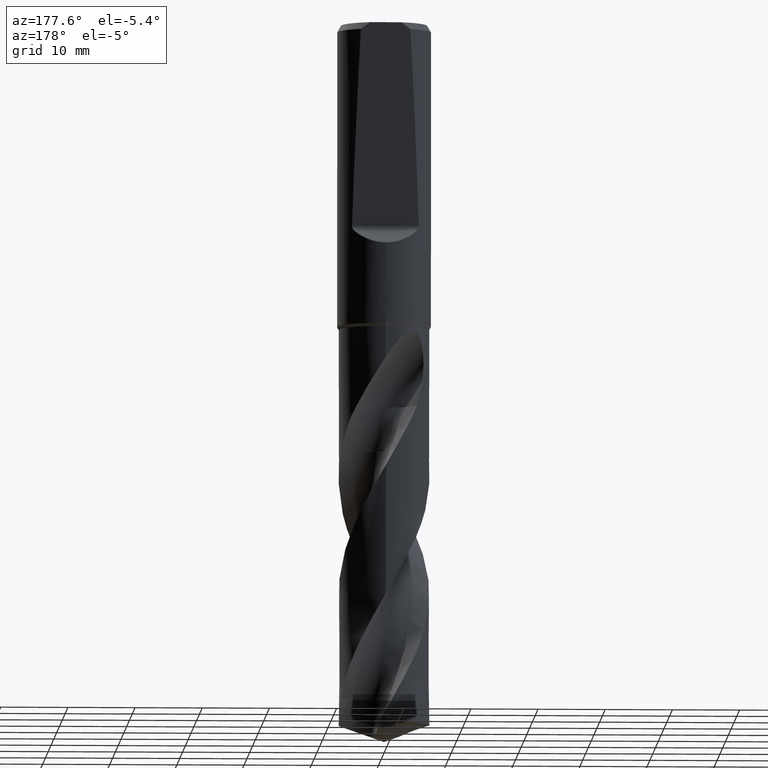
[diagram: clean part render]
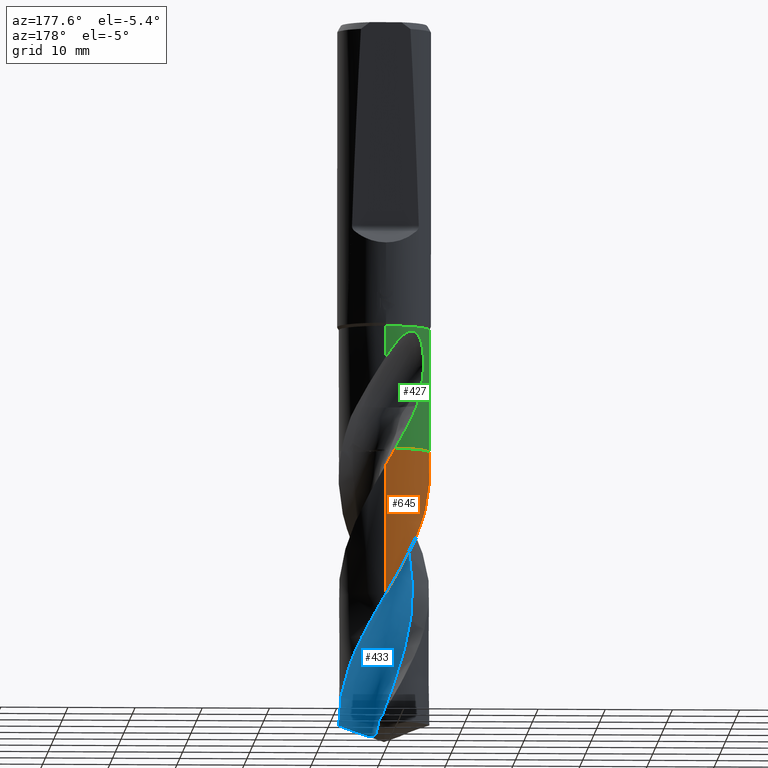
[diagram: same view with three faces highlighted in distinct colors, each labeled with its STEP entity id]
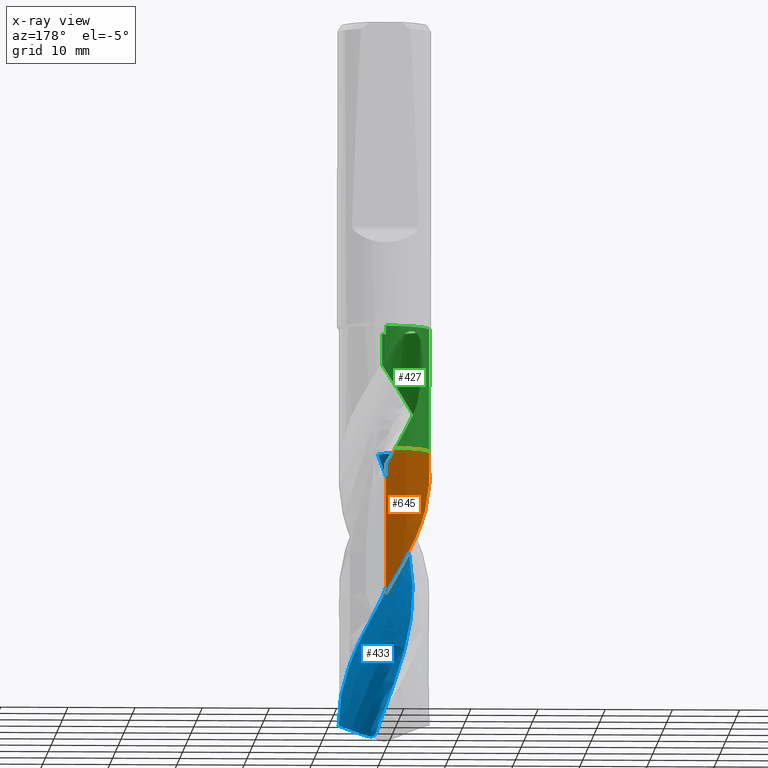
[diagram: x-ray of the same camera — body ghosted, the three highlighted faces saturated]
A machine part, auxiliary view with three faces highlighted in distinct colors.
The next image is the same camera in x-ray (body ghosted, the three faces saturated) — at least one of them is partly hidden behind the body in this view.
Their STEP definitions:

[orange] entity #645 — the highlighted conical surface has half-angle 0 deg.
#327=VERTEX_POINT('',#892);
#335=EDGE_CURVE('',#491,#327,#901,.T.);
#369=EDGE_CURVE('',#691,#607,#943,.T.);
#391=EDGE_CURVE('',#607,#767,#966,.T.);
#441=EDGE_CURVE('',#767,#491,#1020,.T.);
#489=EDGE_CURVE('',#737,#691,#1072,.T.);
#491=VERTEX_POINT('',#1074);
#607=VERTEX_POINT('',#1200);
#645=ADVANCED_FACE('',(#1245),#1246,.T.);
#691=VERTEX_POINT('',#1293);
#737=VERTEX_POINT('',#1340);
#743=EDGE_CURVE('',#327,#737,#1346,.T.);
#767=VERTEX_POINT('',#1371);
#892=CARTESIAN_POINT('',(-6.45462443042286,-1.97458184742703,-63.7));
#901=B_SPLINE_CURVE_WITH_KNOTS('',3,(#1562,#1563,#1564,#1565),.UNSPECIFIED.,.F.,.F.,(4,4),(0.0,0.014979102721226),.UNSPECIFIED.);
#943=B_SPLINE_CURVE_WITH_KNOTS('',3,(#2344,#2345,#2346,#2347,#2348,#2349,#2350,#2351,#2352,#2353,#2354,#2355,#2356,#2357,#2358,#2359,#2360,#2361,#2362,#2363,#2364,#2365,#2366,#2367,#2368,#2369,#2370,#2371,#2372,#2373,#2374,#2375,#2376,#2377,#2378,#2379,#2380,#2381,#2382,#2383,#2384,#2385),.UNSPECIFIED.,.F.,.F.,(4,2,2,2,2,2,2,2,2,2,2,2,2,2,2,2,2,2,2,2,4),(0.0,2.60841472704565,3.91148099596725,6.51470225996306,7.16184843677821,17.6293288972875,17.9528230000258,28.4182261599588,29.0104599763667,31.3081366334576,32.3180311075003,32.4358092214748,34.3097998329228,35.1323884437328,36.6736063928703,39.3711563525133,39.8769049773579,41.7756210665541,42.4878391993768,43.7340770801645,47.4774712904126),.UNSPECIFIED.);
#966=LINE('',#2478,#2479);
#1020=B_SPLINE_CURVE_WITH_KNOTS('',3,(#3111,#3112,#3113,#3114,#3115,#3116,#3117,#3118,#3119,#3120,#3121,#3122,#3123,#3124,#3125,#3126,#3127,#3128,#3129,#3130,#3131,#3132,#3133,#3134,#3135,#3136,#3137,#3138,#3139,#3140,#3141,#3142,#3143,#3144,#3145,#3146,#3147,#3148,#3149,#3150,#3151,#3152,#3153,#3154,#3155,#3156,#3157,#3158,#3159,#3160,#3161,#3162,#3163,#3164,#3165,#3166),.UNSPECIFIED.,.F.,.F.,(4,2,2,2,2,2,2,2,2,2,2,2,2,2,2,2,2,2,2,2,2,2,2,2,2,2,2,4),(0.0,3.6094763871331,5.22387985820616,7.83435737108984,8.17908281940914,11.5370636271643,11.6482843927255,15.1226201124927,15.2320564869372,18.7264188591826,18.8458782488066,22.3210940244424,22.5576284758712,25.6478339054742,26.2934632927179,29.0014147182,30.1421044619575,31.6740450851912,32.4830610158978,34.2651247848204,35.8947199546906,37.3187293752546,39.1809530221651,41.2096111264088,44.2632676352437,45.7872476930288,45.8822495885771,47.3087875527713),.UNSPECIFIED.);
#1072=B_SPLINE_CURVE_WITH_KNOTS('',3,(#4024,#4025,#4026,#4027),.UNSPECIFIED.,.F.,.F.,(4,4),(0.0,0.0119035290309058),.UNSPECIFIED.);
#1074=CARTESIAN_POINT('',(-6.45547001148219,-1.97181568766404,-63.705));
#1200=CARTESIAN_POINT('',(4.81195305200056E-016,6.74990605186965,-66.1717772725898));
#1245=FACE_OUTER_BOUND('',#5984,.T.);
#1246=CONICAL_SURFACE('',#5985,6.74995,2.44838792626987E-006);
#1293=CARTESIAN_POINT('',(-1.42025230153988,6.59879031150665,-63.7049999999999));
#1340=CARTESIAN_POINT('',(-1.42309010233231,6.59817888289215,-63.7));
#1346=CIRCLE('',#6966,6.7499);
#1371=CARTESIAN_POINT('',(-8.84468098854824E-015,6.74995320003243,-85.4285961350601));
#1562=CARTESIAN_POINT('',(-6.45681471524517,-1.96740798299401,-63.7129657938825));
#1563=CARTESIAN_POINT('',(-6.45608594589112,-1.96979968685216,-63.7086438685234));
#1564=CARTESIAN_POINT('',(-6.45535585082279,-1.9721909753735,-63.7043219376779));
#1565=CARTESIAN_POINT('',(-6.45462443042285,-1.97458184742702,-63.7));
#2344=CARTESIAN_POINT('',(-1.42141855211195,6.59853918735497,-63.702945202817));
#2345=CARTESIAN_POINT('',(-0.994650147882827,6.69047301341365,-64.4548745357312));
#2346=CARTESIAN_POINT('',(-0.560079438081121,6.74076359662548,-65.2063741148237));
#2347=CARTESIAN_POINT('',(0.0941131089398632,6.75276923244494,-66.3340627737686));
#2348=CARTESIAN_POINT('',(0.312125404488289,6.74621075111051,-66.7091297161742));
#2349=CARTESIAN_POINT('',(0.963681770441603,6.69494651006564,-67.8352002298889));
#2350=CARTESIAN_POINT('',(1.39358555718122,6.61883345924482,-68.5840294104989));
#2351=CARTESIAN_POINT('',(1.91745417063522,6.47274569248611,-69.5210127833221));
#2352=CARTESIAN_POINT('',(2.02102382020795,6.44115904600317,-69.7075092431834));
#2353=CARTESIAN_POINT('',(3.78581549287871,5.85618708626952,-72.9119558303667));
#2354=CARTESIAN_POINT('',(5.17036074467648,4.67945008818629,-75.8219679644251));
#2355=CARTESIAN_POINT('',(6.00695731236632,3.07913102987968,-78.9325826000195));
#2356=CARTESIAN_POINT('',(6.03145674313281,3.03086062341803,-79.0258162359958));
#2357=CARTESIAN_POINT('',(6.82908277446184,1.41134898378051,-82.136092638973));
#2358=CARTESIAN_POINT('',(6.96194876470371,-0.400900384492098,-85.0471974123016));
#2359=CARTESIAN_POINT('',(6.3949592313197,-2.16247104865236,-88.2349634523103));
#2360=CARTESIAN_POINT('',(6.36252195490035,-2.25612517272503,-88.4056357612421));
#2361=CARTESIAN_POINT('',(6.19424501781686,-2.7094519333505,-89.2388573166208));
#2362=CARTESIAN_POINT('',(6.02988987351155,-3.05782479903576,-89.900634680753));
#2363=CARTESIAN_POINT('',(5.7518775984146,-3.53645497198892,-90.8542848334215));
#2364=CARTESIAN_POINT('',(5.66152809523872,-3.679365057637,-91.1453133394114));
#2365=CARTESIAN_POINT('',(5.55475015084835,-3.83499768673354,-91.470430666899));
#2366=CARTESIAN_POINT('',(5.54352749314338,-3.85120247089997,-91.5043868350772));
#2367=CARTESIAN_POINT('',(5.35254783835293,-4.12440032131194,-92.0786553679614));
#2368=CARTESIAN_POINT('',(5.15518618956621,-4.36857851371054,-92.6187485112685));
#2369=CARTESIAN_POINT('',(4.84783318571444,-4.69889225481599,-93.3963235265989));
#2370=CARTESIAN_POINT('',(4.75100365243202,-4.79677567459534,-93.6334525862687));
#2371=CARTESIAN_POINT('',(4.46430803352099,-5.06938358066031,-94.3150112159417));
#2372=CARTESIAN_POINT('',(4.26738440512676,-5.23622894435803,-94.7588131848635));
#2373=CARTESIAN_POINT('',(3.70096418069052,-5.66292853734022,-95.9811703029327));
#2374=CARTESIAN_POINT('',(3.31407601787965,-5.89771262237363,-96.7572778432937));
#2375=CARTESIAN_POINT('',(2.83015729554042,-6.12859274422081,-97.6808979157817));
#2376=CARTESIAN_POINT('',(2.75308643361956,-6.163599277744,-97.8266959909592));
#2377=CARTESIAN_POINT('',(2.38366816820803,-6.32308355785767,-98.5200677197525));
#2378=CARTESIAN_POINT('',(2.08339756906026,-6.42827826925446,-99.0672144964052));
#2379=CARTESIAN_POINT('',(1.66182051678174,-6.54331000713022,-99.8201142101754));
#2380=CARTESIAN_POINT('',(1.54599977175299,-6.57163983576574,-100.025441873591));
#2381=CARTESIAN_POINT('',(1.22558971237946,-6.64107083421396,-100.590153855112));
#2382=CARTESIAN_POINT('',(1.01983121631653,-6.67576221137777,-100.949116918505));
#2383=CARTESIAN_POINT('',(0.191091338017212,-6.77629498081644,-102.388242568978));
#2384=CARTESIAN_POINT('',(-0.438521722501992,-6.76485796766971,-103.463849304956));
#2385=CARTESIAN_POINT('',(-1.05778435860678,-6.66660275182844,-104.543200918703));
#2478=CARTESIAN_POINT('',(-8.13971610916106E-016,6.74995,-84.1216004593516));
#2479=VECTOR('',#7819,1.0);
#3111=CARTESIAN_POINT('',(6.7321767860416,-0.490199675114795,-104.543200918703));
#3112=CARTESIAN_POINT('',(6.77591349311111,0.11049525068211,-103.50164256975));
#3113=CARTESIAN_POINT('',(6.73911770130022,0.715002915236262,-102.473749106396));
#3114=CARTESIAN_POINT('',(6.56988418353102,1.57223484183529,-100.96821701571));
#3115=CARTESIAN_POINT('',(6.5018031388104,1.83350948074738,-100.501550152455));
#3116=CARTESIAN_POINT('',(6.28310452342239,2.50506722806708,-99.2839514983828));
#3117=CARTESIAN_POINT('',(6.10812079838418,2.90570894844931,-98.5366634971829));
#3118=CARTESIAN_POINT('',(5.86787876275453,3.3367027330707,-97.6847896458287));
#3119=CARTESIAN_POINT('',(5.83922824932869,3.38659152376115,-97.585391908757));
#3120=CARTESIAN_POINT('',(5.52423292954409,3.91918186617651,-96.5173709538488));
#3121=CARTESIAN_POINT('',(5.17962956759883,4.36439620947536,-95.5594459029658));
#3122=CARTESIAN_POINT('',(4.77102854775449,4.77491375747542,-94.5588597826704));
#3123=CARTESIAN_POINT('',(4.75787952818876,4.78801599313903,-94.5267857143604));
#3124=CARTESIAN_POINT('',(4.33145609060338,5.20942337983243,-93.4912537961921));
#3125=CARTESIAN_POINT('',(3.86744801103435,5.56256362751694,-92.4998144857769));
#3126=CARTESIAN_POINT('',(3.34818112852759,5.86106520871688,-91.4651405065965));
#3127=CARTESIAN_POINT('',(3.33230281164425,5.87010724202007,-91.4335637645731));
#3128=CARTESIAN_POINT('',(2.80782626835266,6.1659598060431,-90.3932854899109));
#3129=CARTESIAN_POINT('',(2.26435875324721,6.38556501524205,-89.396728448785));
#3130=CARTESIAN_POINT('',(1.68010039305591,6.53755503343341,-88.3540013555675));
#3131=CARTESIAN_POINT('',(1.66078288236192,6.54248898200039,-88.3195512601972));
#3132=CARTESIAN_POINT('',(1.07840871131651,6.68848853659788,-87.2824918701664));
#3133=CARTESIAN_POINT('',(0.499719070218107,6.75639572803738,-86.2918118373357));
#3134=CARTESIAN_POINT('',(-0.119994859975656,6.74900158627416,-85.2213865484131));
#3135=CARTESIAN_POINT('',(-0.159467265974992,6.74818445350932,-85.1531642304548));
#3136=CARTESIAN_POINT('',(-0.715463451256615,6.73178333687393,-84.1926947118816));
#3137=CARTESIAN_POINT('',(-1.22848870514092,6.65730885445562,-83.3089756784958));
#3138=CARTESIAN_POINT('',(-1.83251279236958,6.49733180395913,-82.2309233599471));
#3139=CARTESIAN_POINT('',(-1.93612249115871,6.46721185657862,-82.0444317590972));
#3140=CARTESIAN_POINT('',(-2.47041941417817,6.29790271458178,-81.0770118574195));
#3141=CARTESIAN_POINT('',(-2.88714949576889,6.11810739766888,-80.3015563601045));
#3142=CARTESIAN_POINT('',(-3.4496392225281,5.8050027646261,-79.1919413665607));
#3143=CARTESIAN_POINT('',(-3.61220949178008,5.70525690137154,-78.8624438682781));
#3144=CARTESIAN_POINT('',(-3.98279462495799,5.45569037542713,-78.0919891326313));
#3145=CARTESIAN_POINT('',(-4.1870523441124,5.30056470022123,-77.6514612578749));
#3146=CARTESIAN_POINT('',(-4.4851547097143,5.04611949952581,-76.9770033442195));
#3147=CARTESIAN_POINT('',(-4.5854561577251,4.95514711579056,-76.7440360849311));
#3148=CARTESIAN_POINT('',(-4.89757212725057,4.65448020955557,-75.9972696104557));
#3149=CARTESIAN_POINT('',(-5.09827224659672,4.43374311055498,-75.4824174310888));
#3150=CARTESIAN_POINT('',(-5.45350992262946,3.98686475046877,-74.499122739739));
#3151=CARTESIAN_POINT('',(-5.61009557401478,3.76333221452888,-74.0306783407445));
#3152=CARTESIAN_POINT('',(-5.87737343140555,3.3278698614603,-73.1506176379335));
#3153=CARTESIAN_POINT('',(-5.99107242556649,3.11851012231822,-72.7393391031787));
#3154=CARTESIAN_POINT('',(-6.22726610327534,2.62285701809091,-71.7924697992895));
#3155=CARTESIAN_POINT('',(-6.341610653239,2.33290058795401,-71.257870945381));
#3156=CARTESIAN_POINT('',(-6.53793030439818,1.71230955994266,-70.1373822729686));
#3157=CARTESIAN_POINT('',(-6.6156596839304,1.38175609825343,-69.5517207431259));
#3158=CARTESIAN_POINT('',(-6.74734929409467,0.542975089850556,-68.0880824963201));
#3159=CARTESIAN_POINT('',(-6.76908087030662,0.0314863644238788,-67.2142810618958));
#3160=CARTESIAN_POINT('',(-6.71500630262277,-0.731242625089391,-65.8963854090281));
#3161=CARTESIAN_POINT('',(-6.68267355281265,-0.983658497911254,-65.4588907852372));
#3162=CARTESIAN_POINT('',(-6.63337336399645,-1.2489200128668,-64.9924430693767));
#3163=CARTESIAN_POINT('',(-6.6304257176614,-1.26447517310635,-64.9650659439186));
#3164=CARTESIAN_POINT('',(-6.58232213416116,-1.51352918345738,-64.5264943629225));
#3165=CARTESIAN_POINT('',(-6.5249100280342,-1.74450236846844,-64.1158580000826));
#3166=CARTESIAN_POINT('',(-6.45541940774096,-1.9719813476624,-63.7047005786555));
#4024=CARTESIAN_POINT('',(-1.42309010233229,6.59817888289213,-63.7));
#4025=CARTESIAN_POINT('',(-1.42114264074437,6.59859891849117,-63.7034314343376));
#4026=CARTESIAN_POINT('',(-1.41919500317624,6.59901808974279,-63.706862874448));
#4027=CARTESIAN_POINT('',(-1.41724719016299,6.59943639655923,-63.7102943206111));
#5984=EDGE_LOOP('',(#8088,#8089,#8090,#8091,#8092,#8093));
#5985=AXIS2_PLACEMENT_3D('',#8094,#8095,#8096);
#6966=AXIS2_PLACEMENT_3D('',#8138,#8139,#8140);
#7819=DIRECTION('',(-2.99831141112908E-022,2.44838792626742E-006,-0.999999999997003));
#8088=ORIENTED_EDGE('',*,*,#391,.T.);
#8089=ORIENTED_EDGE('',*,*,#441,.T.);
#8090=ORIENTED_EDGE('',*,*,#335,.T.);
#8091=ORIENTED_EDGE('',*,*,#743,.T.);
#8092=ORIENTED_EDGE('',*,*,#489,.T.);
#8093=ORIENTED_EDGE('',*,*,#369,.T.);
#8094=CARTESIAN_POINT('',(0.0,0.0,-84.1216004593516));
#8095=DIRECTION('',(0.0,-0.0,-1.0));
#8096=DIRECTION('',(0.0,1.0,0.0));
#8138=CARTESIAN_POINT('',(0.0,0.0,-63.7));
#8139=DIRECTION('',(0.0,0.0,-1.0));
#8140=DIRECTION('',(0.0,1.0,0.0));

[blue] entity #433 — the highlighted face is a freeform B-spline surface patch.
#433=ADVANCED_FACE('',(#1011),#1012,.F.);
#437=EDGE_CURVE('',#723,#439,#1016,.T.);
#439=VERTEX_POINT('',#1018);
#441=EDGE_CURVE('',#767,#491,#1020,.T.);
#483=VERTEX_POINT('',#1066);
#491=VERTEX_POINT('',#1074);
#497=EDGE_CURVE('',#439,#483,#1080,.T.);
#533=EDGE_CURVE('',#491,#723,#1119,.T.);
#683=EDGE_CURVE('',#483,#767,#1285,.T.);
#723=VERTEX_POINT('',#1326);
#767=VERTEX_POINT('',#1371);
#1011=FACE_OUTER_BOUND('',#2598,.T.);
#1012=B_SPLINE_SURFACE_WITH_KNOTS('',3,3,((#2599,#2600,#2601,#2602,#2603,#2604,#2605,#2606,#2607,#2608,#2609,#2610,#2611,#2612,#2613,#2614,#2615,#2616,#2617,#2618,#2619,#2620,#2621,#2622,#2623,#2624,#2625,#2626,#2627,#2628,#2629,#2630,#2631,#2632,#2633,#2634,#2635,#2636,#2637,#2638,#2639,#2640),(#2641,#2642,#2643,#2644,#2645,#2646,#2647,#2648,#2649,#2650,#2651,#2652,#2653,#2654,#2655,#2656,#2657,#2658,#2659,#2660,#2661,#2662,#2663,#2664,#2665,#2666,#2667,#2668,#2669,#2670,#2671,#2672,#2673,#2674,#2675,#2676,#2677,#2678,#2679,#2680,#2681,#2682),(#2683,#2684,#2685,#2686,#2687,#2688,#2689,#2690,#2691,#2692,#2693,#2694,#2695,#2696,#2697,#2698,#2699,#2700,#2701,#2702,#2703,#2704,#2705,#2706,#2707,#2708,#2709,#2710,#2711,#2712,#2713,#2714,#2715,#2716,#2717,#2718,#2719,#2720,#2721,#2722,#2723,#2724),(#2725,#2726,#2727,#2728,#2729,#2730,#2731,#2732,#2733,#2734,#2735,#2736,#2737,#2738,#2739,#2740,#2741,#2742,#2743,#2744,#2745,#2746,#2747,#2748,#2749,#2750,#2751,#2752,#2753,#2754,#2755,#2756,#2757,#2758,#2759,#2760,#2761,#2762,#2763,#2764,#2765,#2766),(#2767,#2768,#2769,#2770,#2771,#2772,#2773,#2774,#2775,#2776,#2777,#2778,#2779,#2780,#2781,#2782,#2783,#2784,#2785,#2786,#2787,#2788,#2789,#2790,#2791,#2792,#2793,#2794,#2795,#2796,#2797,#2798,#2799,#2800,#2801,#2802,#2803,#2804,#2805,#2806,#2807,#2808),(#2809,#2810,#2811,#2812,#2813,#2814,#2815,#2816,#2817,#2818,#2819,#2820,#2821,#2822,#2823,#2824,#2825,#2826,#2827,#2828,#2829,#2830,#2831,#2832,#2833,#2834,#2835,#2836,#2837,#2838,#2839,#2840,#2841,#2842,#2843,#2844,#2845,#2846,#2847,#2848,#2849,#2850),(#2851,#2852,#2853,#2854,#2855,#2856,#2857,#2858,#2859,#2860,#2861,#2862,#2863,#2864,#2865,#2866,#2867,#2868,#2869,#2870,#2871,#2872,#2873,#2874,#2875,#2876,#2877,#2878,#2879,#2880,#2881,#2882,#2883,#2884,#2885,#2886,#2887,#2888,#2889,#2890,#2891,#2892),(#2893,#2894,#2895,#2896,#2897,#2898,#2899,#2900,#2901,#2902,#2903,#2904,#2905,#2906,#2907,#2908,#2909,#2910,#2911,#2912,#2913,#2914,#2915,#2916,#2917,#2918,#2919,#2920,#2921,#2922,#2923,#2924,#2925,#2926,#2927,#2928,#2929,#2930,#2931,#2932,#2933,#2934),(#2935,#2936,#2937,#2938,#2939,#2940,#2941,#2942,#2943,#2944,#2945,#2946,#2947,#2948,#2949,#2950,#2951,#2952,#2953,#2954,#2955,#2956,#2957,#2958,#2959,#2960,#2961,#2962,#2963,#2964,#2965,#2966,#2967,#2968,#2969,#2970,#2971,#2972,#2973,#2974,#2975,#2976),(#2977,#2978,#2979,#2980,#2981,#2982,#2983,#2984,#2985,#2986,#2987,#2988,#2989,#2990,#2991,#2992,#2993,#2994,#2995,#2996,#2997,#2998,#2999,#3000,#3001,#3002,#3003,#3004,#3005,#3006,#3007,#3008,#3009,#3010,#3011,#3012,#3013,#3014,#3015,#3016,#3017,#3018),(#3019,#3020,#3021,#3022,#3023,#3024,#3025,#3026,#3027,#3028,#3029,#3030,#3031,#3032,#3033,#3034,#3035,#3036,#3037,#3038,#3039,#3040,#3041,#3042,#3043,#3044,#3045,#3046,#3047,#3048,#3049,#3050,#3051,#3052,#3053,#3054,#3055,#3056,#3057,#3058,#3059,#3060)),.UNSPECIFIED.,.F.,.F.,.F.,(4,1,1,1,1,1,1,1,4),(4,1,2,2,2,2,2,2,2,2,2,2,2,2,2,2,2,2,2,1,2,4),(9.82247012635848E-017,0.392700748367105,0.785401496734209,1.17810224510131,1.57080299346842,1.96350374183552,2.35620449020263,2.74890523856973,3.14160598693684),(0.0,1.5027852835685,3.005570567137,4.00742742284934,6.01114113427401,8.01485484569868,10.0185685571233,12.022282268548,16.0297096913974,20.0371371142467,24.044564537096,28.0519919599454,32.0594193827947,36.066846805644,40.0742742284934,44.0817016513427,48.0891290741921,52.0965564970414,56.1039839198907,60.1114113427401,62.1151250541648,64.1188387655894),.UNSPECIFIED.);
#1016=B_SPLINE_CURVE_WITH_KNOTS('',3,(#3065,#3066,#3067,#3068,#3069,#3070,#3071,#3072,#3073,#3074,#3075,#3076,#3077,#3078,#3079,#3080,#3081,#3082,#3083,#3084,#3085,#3086,#3087,#3088,#3089,#3090,#3091,#3092,#3093,#3094,#3095,#3096,#3097,#3098,#3099,#3100,#3101,#3102,#3103,#3104,#3105,#3106),.UNSPECIFIED.,.F.,.F.,(4,1,2,2,2,2,2,2,2,2,2,2,2,2,2,2,2,2,2,1,2,4),(0.0,1.5027852835685,3.005570567137,4.00742742284934,6.01114113427401,8.01485484569868,10.0185685571233,12.022282268548,16.0297096913974,20.0371371142467,24.044564537096,28.0519919599454,32.0594193827947,36.066846805644,40.0742742284934,44.0817016513427,48.0891290741921,52.0965564970414,56.1039839198907,60.1114113427401,62.1151250541648,64.1188387655894),.UNSPECIFIED.);
#1018=CARTESIAN_POINT('',(1.16355140626848,4.09480875500876,-105.45061028102));
#1020=B_SPLINE_CURVE_WITH_KNOTS('',3,(#3111,#3112,#3113,#3114,#3115,#3116,#3117,#3118,#3119,#3120,#3121,#3122,#3123,#3124,#3125,#3126,#3127,#3128,#3129,#3130,#3131,#3132,#3133,#3134,#3135,#3136,#3137,#3138,#3139,#3140,#3141,#3142,#3143,#3144,#3145,#3146,#3147,#3148,#3149,#3150,#3151,#3152,#3153,#3154,#3155,#3156,#3157,#3158,#3159,#3160,#3161,#3162,#3163,#3164,#3165,#3166),.UNSPECIFIED.,.F.,.F.,(4,2,2,2,2,2,2,2,2,2,2,2,2,2,2,2,2,2,2,2,2,2,2,2,2,2,2,4),(0.0,3.6094763871331,5.22387985820616,7.83435737108984,8.17908281940914,11.5370636271643,11.6482843927255,15.1226201124927,15.2320564869372,18.7264188591826,18.8458782488066,22.3210940244424,22.5576284758712,25.6478339054742,26.2934632927179,29.0014147182,30.1421044619575,31.6740450851912,32.4830610158978,34.2651247848204,35.8947199546906,37.3187293752546,39.1809530221651,41.2096111264088,44.2632676352437,45.7872476930288,45.8822495885771,47.3087875527713),.UNSPECIFIED.);
#1066=CARTESIAN_POINT('',(6.73217678604159,-0.490199675114818,-104.543200918703));
#1074=CARTESIAN_POINT('',(-6.45547001148219,-1.97181568766404,-63.705));
#1080=B_SPLINE_CURVE_WITH_KNOTS('',3,(#4050,#4051,#4052,#4053,#4054,#4055,#4056,#4057,#4058,#4059,#4060,#4061,#4062,#4063,#4064,#4065,#4066,#4067,#4068,#4069),.UNSPECIFIED.,.F.,.F.,(4,2,2,2,2,2,2,2,2,4),(0.0,2.68807638243007,4.7918048135558,7.03815035793403,9.6794440435218,12.569325507475,15.8028415375982,19.4146266992796,21.7514746894956,24.0889062904465),.UNSPECIFIED.);
#1119=B_SPLINE_CURVE_WITH_KNOTS('',3,(#4913,#4914,#4915,#4916,#4917,#4918,#4919,#4920,#4921,#4922,#4923,#4924,#4925,#4926,#4927,#4928,#4929,#4930,#4931,#4932),.UNSPECIFIED.,.F.,.F.,(4,2,2,2,2,2,2,2,2,4),(-14.1757189674355,-13.2380813437881,-12.3002661310607,-10.5415472471319,-8.78302977049739,-7.0254399345643,-5.26896085826281,-3.51311918382967,-1.75705188792895,-0.0),.UNSPECIFIED.);
#1285=B_SPLINE_CURVE_WITH_KNOTS('',3,(#6273,#6274,#6275,#6276,#6277,#6278,#6279,#6280,#6281,#6282,#6283,#6284,#6285,#6286,#6287,#6288,#6289,#6290,#6291,#6292,#6293,#6294,#6295,#6296,#6297,#6298,#6299,#6300,#6301,#6302,#6303,#6304,#6305,#6306,#6307,#6308,#6309,#6310,#6311,#6312,#6313,#6314,#6315,#6316,#6317,#6318,#6319,#6320,#6321,#6322,#6323,#6324,#6325,#6326,#6327,#6328),.UNSPECIFIED.,.F.,.F.,(4,2,2,2,2,2,2,2,2,2,2,2,2,2,2,2,2,2,2,2,2,2,2,2,2,2,2,4),(0.0,3.6094763871331,5.22387985820616,7.83435737108984,8.17908281940914,11.5370636271643,11.6482843927255,15.1226201124927,15.2320564869372,18.7264188591826,18.8458782488066,22.3210940244424,22.5576284758712,25.6478339054742,26.2934632927179,29.0014147182,30.1421044619575,31.6740450851912,32.4830610158978,34.2651247848204,35.8947199546906,37.3187293752546,39.1809530221651,41.2096111264088,44.2632676352437,45.7872476930288,45.8822495885771,47.3087875527713),.UNSPECIFIED.);
#1326=CARTESIAN_POINT('',(0.715183852688511,-4.18412253876505,-63.705));
#1371=CARTESIAN_POINT('',(-8.84468098854824E-015,6.74995320003243,-85.4285961350601));
#2598=EDGE_LOOP('',(#7874,#7875,#7876,#7877,#7878));
#2599=CARTESIAN_POINT('',(-3.18198051526876,-9.70698051526875,-57.211));
#2600=CARTESIAN_POINT('',(-3.49762880248657,-9.6892339450352,-57.5995444756231));
#2601=CARTESIAN_POINT('',(-4.13685295321303,-9.58534460420507,-58.3819179945856));
#2602=CARTESIAN_POINT('',(-4.769201879957,-9.29897149157865,-59.1649348006116));
#2603=CARTESIAN_POINT('',(-5.27419593842555,-8.97416530715522,-59.8100503771975));
#2604=CARTESIAN_POINT('',(-5.471202084019,-8.840920245005,-60.0678474108114));
#2605=CARTESIAN_POINT('',(-6.04951822306637,-8.43397049283102,-60.8421736801692));
#2606=CARTESIAN_POINT('',(-6.41781244943569,-8.14927588713909,-61.3591159795685));
#2607=CARTESIAN_POINT('',(-7.1237312853322,-7.56150190459187,-62.4002499861934));
#2608=CARTESIAN_POINT('',(-7.45637268966448,-7.2409884423418,-62.9203756380846));
#2609=CARTESIAN_POINT('',(-8.07082775129849,-6.54831980559104,-63.9577693479461));
#2610=CARTESIAN_POINT('',(-8.35485653403761,-6.18141783489463,-64.4762316168021));
#2611=CARTESIAN_POINT('',(-8.8702540774829,-5.41077704319602,-65.5125095852414));
#2612=CARTESIAN_POINT('',(-9.10290793610902,-5.00916673812566,-66.0309976821697));
#2613=CARTESIAN_POINT('',(-9.71712016628376,-3.7630390217538,-67.5878993370277));
#2614=CARTESIAN_POINT('',(-10.0179569789194,-2.88042624554586,-68.6256335329529));
#2615=CARTESIAN_POINT('',(-10.3662020069567,-1.06021653023426,-70.7000780838631));
#2616=CARTESIAN_POINT('',(-10.4225501141987,-0.129145015059285,-71.7374119229942));
#2617=CARTESIAN_POINT('',(-10.2776915003155,1.71835740618701,-73.812416307943));
#2618=CARTESIAN_POINT('',(-10.0858740506611,2.63112213882924,-74.8498778206637));
#2619=CARTESIAN_POINT('',(-9.45755367462432,4.37450258321749,-76.9246967355395));
#2620=CARTESIAN_POINT('',(-9.03125825313551,5.20408249675878,-77.9621114938507));
#2621=CARTESIAN_POINT('',(-7.96452854593375,6.71937383058544,-80.0369806066799));
#2622=CARTESIAN_POINT('',(-7.3340807931845,7.40675209523193,-81.0744205694255));
#2623=CARTESIAN_POINT('',(-5.90451734479258,8.58599910915326,-83.1492750505459));
#2624=CARTESIAN_POINT('',(-5.11473516102228,9.0821853605941,-84.1866997889712));
#2625=CARTESIAN_POINT('',(-3.4243193541811,9.84154431202464,-86.2615634576688));
#2626=CARTESIAN_POINT('',(-2.53148234167934,10.1112932552349,-87.2989906278269));
#2627=CARTESIAN_POINT('',(-0.700492502042685,10.3967895285524,-89.3738488151862));
#2628=CARTESIAN_POINT('',(0.231913413817933,10.4208931164264,-90.4112852070372));
#2629=CARTESIAN_POINT('',(2.07328686686427,10.211946184496,-92.4861337459123));
#2630=CARTESIAN_POINT('',(2.9788712741555,9.98862125180316,-93.5235599365649));
#2631=CARTESIAN_POINT('',(4.699447011012,9.30037015178935,-95.5984490282313));
#2632=CARTESIAN_POINT('',(5.51374638195395,8.84561499940403,-96.6358623171632));
#2633=CARTESIAN_POINT('',(6.99127559529852,7.72714507347948,-98.7106809173959));
#2634=CARTESIAN_POINT('',(7.65650627832451,7.07318305577437,-99.74821636351));
#2635=CARTESIAN_POINT('',(8.78489799873365,5.60289874721488,-101.82317968493));
#2636=CARTESIAN_POINT('',(9.48753569641785,4.39387752887985,-103.378614894298));
#2637=CARTESIAN_POINT('',(9.92703311808111,3.0722388358664,-104.933986043238));
#2638=CARTESIAN_POINT('',(10.1553083622899,2.17288266418363,-105.97102341391));
#2639=CARTESIAN_POINT('',(10.24482512089,1.72051562015456,-106.488907292739));
#2640=CARTESIAN_POINT('',(10.3121604422015,1.26768718860873,-107.007477781372));
#2641=CARTESIAN_POINT('',(-3.59848450863848,-9.29044042332765,-57.211));
#2642=CARTESIAN_POINT('',(-3.91415942287795,-9.27272048011575,-57.5995451701271));
#2643=CARTESIAN_POINT('',(-4.54462542398429,-9.15975318988982,-58.3824548068669));
#2644=CARTESIAN_POINT('',(-5.14829045367206,-8.84741082633067,-59.1661479742131));
#2645=CARTESIAN_POINT('',(-5.61998752445256,-8.49699543019721,-59.8108137830136));
#2646=CARTESIAN_POINT('',(-5.80402570536207,-8.3546783405938,-60.0683924513693));
#2647=CARTESIAN_POINT('',(-6.34485315277672,-7.92343607865965,-60.8421957140724));
#2648=CARTESIAN_POINT('',(-6.68947139233492,-7.62603633149149,-61.3588928534762));
#2649=CARTESIAN_POINT('',(-7.35112824428613,-7.01756382706157,-62.4005425499547));
#2650=CARTESIAN_POINT('',(-7.66013578466845,-6.68767259974313,-62.9208639622024));
#2651=CARTESIAN_POINT('',(-8.22428472257295,-5.97899689092072,-63.95825245382));
#2652=CARTESIAN_POINT('',(-8.48264275355567,-5.60578181112978,-64.4766797161285));
#2653=CARTESIAN_POINT('',(-8.94573221571751,-4.82597868379945,-65.5127976894806));
#2654=CARTESIAN_POINT('',(-9.15219982728726,-4.42159285894364,-66.0312542665905));
#2655=CARTESIAN_POINT('',(-9.68758358685572,-3.17238307063933,-67.5882611249742));
#2656=CARTESIAN_POINT('',(-9.93631575717539,-2.29466591931305,-68.6260377230421));
#2657=CARTESIAN_POINT('',(-10.1814863652492,-0.49838008209875,-70.7004245626589));
#2658=CARTESIAN_POINT('',(-10.1888476507811,0.414138660876714,-71.7377451327105));
#2659=CARTESIAN_POINT('',(-9.95101999485768,2.21136782090608,-73.8127697072937));
#2660=CARTESIAN_POINT('',(-9.71685556123873,3.09329173752998,-74.8502356483555));
#2661=CARTESIAN_POINT('',(-9.01214692699013,4.76358848540972,-76.9250489722556));
#2662=CARTESIAN_POINT('',(-8.55317420112361,5.5522340480904,-77.9624616727115));
#2663=CARTESIAN_POINT('',(-7.4321112680659,6.97687190457469,-80.0373321522236));
#2664=CARTESIAN_POINT('',(-6.78096589522778,7.61613119210176,-81.0747734846115));
#2665=CARTESIAN_POINT('',(-5.32296106039295,8.69355172289131,-83.1496274687563));
#2666=CARTESIAN_POINT('',(-4.52594355008195,9.13785542293146,-84.1870514568585));
#2667=CARTESIAN_POINT('',(-2.83502241222265,9.79151027005065,-86.2619157467755));
#2668=CARTESIAN_POINT('',(-1.94892346919123,10.0093166368682,-87.2993425604051));
#2669=CARTESIAN_POINT('',(-0.14538837962617,10.1927476613317,-89.3742006235205));
#2670=CARTESIAN_POINT('',(0.766787161371482,10.1685324103115,-90.4116377250061));
#2671=CARTESIAN_POINT('',(2.55467996576088,9.86838231494692,-92.4864852699301));
#2672=CARTESIAN_POINT('',(3.42797475748158,9.60380878458415,-93.5239112746543));
#2673=CARTESIAN_POINT('',(5.07287576886629,8.84175798597418,-95.5988043421256));
#2674=CARTESIAN_POINT('',(5.84513448879827,8.35576307122503,-96.6362152006481));
#2675=CARTESIAN_POINT('',(7.23019818958414,7.18613807850615,-98.7110233643929));
#2676=CARTESIAN_POINT('',(7.84661114508147,6.51314426845413,-99.7485688264427));
#2677=CARTESIAN_POINT('',(8.87210984162683,5.01793980099298,-101.82355625118));
#2678=CARTESIAN_POINT('',(9.49674834070932,3.80082391789212,-103.378914186025));
#2679=CARTESIAN_POINT('',(9.85709842058979,2.48673891531968,-104.934334935301));
#2680=CARTESIAN_POINT('',(10.0324386487761,1.59616452795624,-105.971413679192));
#2681=CARTESIAN_POINT('',(10.0972332326483,1.14974376280359,-106.489225617402));
#2682=CARTESIAN_POINT('',(10.1414623715856,0.703911280293982,-107.007822135133));
#2683=CARTESIAN_POINT('',(-4.26567439273161,-8.29190737352337,-57.211));
#2684=CARTESIAN_POINT('',(-4.58141313571002,-8.2742300742417,-57.5995463073199));
#2685=CARTESIAN_POINT('',(-5.19075656552089,-8.14659355332486,-58.3833376843218));
#2686=CARTESIAN_POINT('',(-5.72673933492476,-7.79372940983577,-59.168143268162));
#2687=CARTESIAN_POINT('',(-6.12167229372349,-7.40534777140245,-59.8120693284854));
#2688=CARTESIAN_POINT('',(-6.2761723295128,-7.25004749824259,-60.06928887624));
#2689=CARTESIAN_POINT('',(-6.73237780607765,-6.78513849303649,-60.842231934069));
#2690=CARTESIAN_POINT('',(-7.02460171902078,-6.47174882953765,-61.3585258829054));
#2691=CARTESIAN_POINT('',(-7.58952223570208,-5.83948938980974,-62.4010237230458));
#2692=CARTESIAN_POINT('',(-7.84754285574393,-5.50024474071848,-62.921667096303));
#2693=CARTESIAN_POINT('',(-8.30473524660367,-4.77956653712976,-63.9590470080628));
#2694=CARTESIAN_POINT('',(-8.50925219638031,-4.40393620750796,-64.4774166783685));
#2695=CARTESIAN_POINT('',(-8.86410382239892,-3.62661338020055,-65.5132715441395));
#2696=CARTESIAN_POINT('',(-9.01710634201307,-3.22709097110358,-66.0316762722828));
#2697=CARTESIAN_POINT('',(-9.39364070012309,-2.00306550470024,-67.5888561346848));
#2698=CARTESIAN_POINT('',(-9.54013232041018,-1.15585762586183,-68.6267023529278));
#2699=CARTESIAN_POINT('',(-9.58871119315948,0.551601636685936,-70.7009945404343));
#2700=CARTESIAN_POINT('',(-9.50549726405055,1.40754236031612,-71.738293171188));
#2701=CARTESIAN_POINT('',(-9.10176236087946,3.06727581817783,-73.8133509187979));
#2702=CARTESIAN_POINT('',(-8.79518602268179,3.87069123390076,-74.8508241537196));
#2703=CARTESIAN_POINT('',(-7.96679591950118,5.364474583384,-76.9256282933327));
#2704=CARTESIAN_POINT('',(-7.45876037819333,6.05827407408985,-77.9630375779908));
#2705=CARTESIAN_POINT('',(-6.26510334947567,7.28003688778736,-80.0379103567663));
#2706=CARTESIAN_POINT('',(-5.59170664138886,7.81484781123356,-81.0753541831434));
#2707=CARTESIAN_POINT('',(-4.11732364791942,8.67734807292814,-83.1502068157006));
#2708=CARTESIAN_POINT('',(-3.32647034101027,9.01503132129095,-84.1876298004956));
#2709=CARTESIAN_POINT('',(-1.67657334401883,9.45712154836912,-86.2624951848279));
#2710=CARTESIAN_POINT('',(-0.824603344024859,9.5737441192048,-87.2999214870925));
#2711=CARTESIAN_POINT('',(0.883446143430663,9.56400533217754,-89.3747791231859));
#2712=CARTESIAN_POINT('',(1.73595488609132,9.45121763902907,-90.412217946232));
#2713=CARTESIAN_POINT('',(3.38064071952301,8.98996691576986,-92.4870629702175));
#2714=CARTESIAN_POINT('',(4.17296681660783,8.65575391094944,-93.5244887608836));
#2715=CARTESIAN_POINT('',(5.63720288513927,7.77622791773229,-95.5993890699747));
#2716=CARTESIAN_POINT('',(6.31297507142735,7.24448461794362,-96.6367956867725));
#2717=CARTESIAN_POINT('',(7.49280418105965,6.00934116884088,-98.7115864721889));
#2718=CARTESIAN_POINT('',(8.00403408837443,5.31770480280215,-99.7491485000178));
#2719=CARTESIAN_POINT('',(8.81388005820653,3.81358726496448,-101.824175594961));
#2720=CARTESIAN_POINT('',(9.27933420860391,2.6113028980812,-103.379406394138));
#2721=CARTESIAN_POINT('',(9.48442664377231,1.34379608560813,-104.934908776507));
#2722=CARTESIAN_POINT('',(9.55741140672819,0.491831836618624,-105.972055512891));
#2723=CARTESIAN_POINT('',(9.57513667224639,0.0671322623643559,-106.489748961888));
#2724=CARTESIAN_POINT('',(9.57594516402506,-0.355522795138697,-107.008388485771));
#2725=CARTESIAN_POINT('',(-4.6171451749342,-6.52500544825521,-57.2109999999997));
#2726=CARTESIAN_POINT('',(-4.93299686058655,-6.50735061442092,-57.5995470207327));
#2727=CARTESIAN_POINT('',(-5.50464491394898,-6.37150908157843,-58.3838888290614));
#2728=CARTESIAN_POINT('',(-5.92356470274752,-6.00133567885687,-59.1693888378312));
#2729=CARTESIAN_POINT('',(-6.19031202176194,-5.60440299301881,-59.8128531169871));
#2730=CARTESIAN_POINT('',(-6.29642079329062,-5.44806570298385,-60.0698484697892));
#2731=CARTESIAN_POINT('',(-6.61601898897674,-4.98507480861103,-60.8422545573266));
#2732=CARTESIAN_POINT('',(-6.82644893636444,-4.67960112119295,-61.3582968010404));
#2733=CARTESIAN_POINT('',(-7.24364441045092,-4.06990617210011,-62.4013240966801));
#2734=CARTESIAN_POINT('',(-7.42563136228372,-3.74696712094702,-62.9221684546805));
#2735=CARTESIAN_POINT('',(-7.72769905817049,-3.07105285309119,-63.9595430184878));
#2736=CARTESIAN_POINT('',(-7.856209254057,-2.72298283248158,-64.4778767436223));
#2737=CARTESIAN_POINT('',(-8.06247432787382,-2.01123181666445,-65.5135673403213));
#2738=CARTESIAN_POINT('',(-8.14416958587768,-1.6491415916704,-66.0319396956314));
#2739=CARTESIAN_POINT('',(-8.31500636009801,-0.551207574716967,-67.5892276075868));
#2740=CARTESIAN_POINT('',(-8.33731330925646,0.195025134561875,-68.6271172997058));
#2741=CARTESIAN_POINT('',(-8.16442012163857,1.6665227039315,-70.701350306656));
#2742=CARTESIAN_POINT('',(-7.98815366146477,2.39205517532205,-71.738635291901));
#2743=CARTESIAN_POINT('',(-7.43341216070769,3.76598936797676,-73.8137137407675));
#2744=CARTESIAN_POINT('',(-7.07154570254501,4.41902906795962,-74.8511915545218));
#2745=CARTESIAN_POINT('',(-6.17306901187862,5.59717692154721,-76.9259899168523));
#2746=CARTESIAN_POINT('',(-5.65148227673651,6.13136150864337,-77.9633971279054));
#2747=CARTESIAN_POINT('',(-4.4736755796388,7.03028018621773,-80.0382712684728));
#2748=CARTESIAN_POINT('',(-3.82939874976181,7.4075591688047,-81.075716557216));
#2749=CARTESIAN_POINT('',(-2.45569209210043,7.96279241562239,-83.1505686086093));
#2750=CARTESIAN_POINT('',(-1.73458762667471,8.15624532937079,-84.1879908992838));
#2751=CARTESIAN_POINT('',(-0.262996505443581,8.32867105449014,-86.2628568398648));
#2752=CARTESIAN_POINT('',(0.483588307601219,8.32465141499796,-87.3002828593386));
#2753=CARTESIAN_POINT('',(1.94841161795454,8.10200577871685,-89.3751402829174));
#2754=CARTESIAN_POINT('',(2.66738091865434,7.90071443278283,-90.4125799164264));
#2755=CARTESIAN_POINT('',(4.02111134019999,7.29839719160953,-92.4874238411074));
#2756=CARTESIAN_POINT('',(4.6612435553378,6.91414877148567,-93.5248493164397));
#2757=CARTESIAN_POINT('',(5.80765306191535,5.9755209843495,-95.5997540351842));
#2758=CARTESIAN_POINT('',(6.32343939720178,5.43576177368492,-96.6371579851416));
#2759=CARTESIAN_POINT('',(7.18121606658923,4.22762943616114,-98.7119380707971));
#2760=CARTESIAN_POINT('',(7.53596736846048,3.57053624148584,-99.7495105460215));
#2761=CARTESIAN_POINT('',(8.04181659612781,2.1778616410419,-101.824562044449));
#2762=CARTESIAN_POINT('',(8.29516573084065,1.08751297034404,-103.379713715474));
#2763=CARTESIAN_POINT('',(8.31181981105499,-0.0263137302154492,-104.935266989486));
#2764=CARTESIAN_POINT('',(8.26511083843993,-0.766009531574368,-105.972456193994));
#2765=CARTESIAN_POINT('',(8.23007028241664,-1.13358468999789,-106.49007575077));
#2766=CARTESIAN_POINT('',(8.18400571036739,-1.49919169679366,-107.008742034354));
#2767=CARTESIAN_POINT('',(-4.2656947986255,-4.75809946398208,-57.2109999999999));
#2768=CARTESIAN_POINT('',(-4.58165942565485,-4.74042216840877,-57.5995466252774));
#2769=CARTESIAN_POINT('',(-5.11534154242673,-4.61142575047159,-58.3835827624511));
#2770=CARTESIAN_POINT('',(-5.41948764187467,-4.27005783616374,-59.168697139281));
#2771=CARTESIAN_POINT('',(-5.56453318993628,-3.91428026478287,-59.8124178571155));
#2772=CARTESIAN_POINT('',(-5.6255369858129,-3.77550374937505,-60.0695377114479));
#2773=CARTESIAN_POINT('',(-5.81966001637122,-3.36656280937138,-60.8422419951751));
#2774=CARTESIAN_POINT('',(-5.95755174838583,-3.09970380169971,-61.3584240155548));
#2775=CARTESIAN_POINT('',(-6.24690230481448,-2.56738779580999,-62.401157291876));
#2776=CARTESIAN_POINT('',(-6.36488355653496,-2.28860982593579,-62.9218900425631));
#2777=CARTESIAN_POINT('',(-6.54076526931466,-1.71341589392176,-63.9592675641571));
#2778=CARTESIAN_POINT('',(-6.609601294024,-1.41989493239868,-64.4776212571726));
#2779=CARTESIAN_POINT('',(-6.70368357285332,-0.825586332778705,-65.5134030760325));
#2780=CARTESIAN_POINT('',(-6.73382427556639,-0.525367135287112,-66.0317933940164));
#2781=CARTESIAN_POINT('',(-6.7628747719769,0.377356356903101,-67.5890213491242));
#2782=CARTESIAN_POINT('',(-6.70909174230346,0.982776730650234,-68.6268868353324));
#2783=CARTESIAN_POINT('',(-6.4218841831315,2.15152016137892,-70.7011527728075));
#2784=CARTESIAN_POINT('',(-6.2095536750988,2.72096138536407,-71.738445292484));
#2785=CARTESIAN_POINT('',(-5.62467143463692,3.77306374774897,-73.8135122660395));
#2786=CARTESIAN_POINT('',(-5.269270064426,4.26601578282975,-74.8509875198099));
#2787=CARTESIAN_POINT('',(-4.42683083906143,5.12573358946952,-76.9257891042179));
#2788=CARTESIAN_POINT('',(-3.95380665627936,5.50726748685174,-77.9631974322088));
#2789=CARTESIAN_POINT('',(-2.9141912392073,6.11398291805469,-80.0380708719245));
#2790=CARTESIAN_POINT('',(-2.35710274815913,6.35686523939038,-81.075515255354));
#2791=CARTESIAN_POINT('',(-1.19399533059726,6.66674820313867,-83.1503677605358));
#2792=CARTESIAN_POINT('',(-0.592525089658485,6.75364159196177,-84.1877904055591));
#2793=CARTESIAN_POINT('',(0.611136460298131,6.74516494284009,-86.2626559684261));
#2794=CARTESIAN_POINT('',(1.21419016642972,6.67001579278071,-87.3000821793175));
#2795=CARTESIAN_POINT('',(2.37282570860924,6.34374900700839,-89.3749397209705));
#2796=CARTESIAN_POINT('',(2.93455173502872,6.11179450406173,-90.4123787731433));
#2797=CARTESIAN_POINT('',(3.96549051893653,5.49049311358526,-92.4872235707574));
#2798=CARTESIAN_POINT('',(4.44586621411724,5.11826033474969,-93.5246491245335));
#2799=CARTESIAN_POINT('',(5.27602512338512,4.24665702598478,-95.5995513253742));
#2800=CARTESIAN_POINT('',(5.64093631807047,3.76071628362587,-96.6369568046152));
#2801=CARTESIAN_POINT('',(6.2115122350157,2.70078350643107,-98.7117428046102));
#2802=CARTESIAN_POINT('',(6.43491545619019,2.13548603939276,-99.7493096575217));
#2803=CARTESIAN_POINT('',(6.70255594971998,0.962106127837999,-101.824347272741));
#2804=CARTESIAN_POINT('',(6.80278183178817,0.0563419618221746,-103.379543051222));
#2805=CARTESIAN_POINT('',(6.70415273929896,-0.843390458765846,-104.935068105562));
#2806=CARTESIAN_POINT('',(6.58982470852716,-1.43355888225022,-105.972233643077));
#2807=CARTESIAN_POINT('',(6.52789554878575,-1.72816521835185,-106.489894303575));
#2808=CARTESIAN_POINT('',(6.46035736282496,-2.02312915464004,-107.008545699063));
#2809=CARTESIAN_POINT('',(-3.26482884600981,-3.26018709366381,-57.2110000000003));
#2810=CARTESIAN_POINT('',(-3.58088922254015,-3.24244581870838,-57.5995451825859));
#2811=CARTESIAN_POINT('',(-4.08211485207143,-3.1343025565319,-58.3824660836539));
#2812=CARTESIAN_POINT('',(-4.29124996400942,-2.86346941901163,-59.1661734709904));
#2813=CARTESIAN_POINT('',(-4.33960574718586,-2.59228762612685,-59.8108298186175));
#2814=CARTESIAN_POINT('',(-4.36565774140504,-2.48699614552212,-60.0684039085195));
#2815=CARTESIAN_POINT('',(-4.46454033783331,-2.1760083820811,-60.8421961665695));
#2816=CARTESIAN_POINT('',(-4.55019296590842,-1.97258388958526,-61.3588881642788));
#2817=CARTESIAN_POINT('',(-4.75104215820401,-1.56068102190485,-62.400548698116));
#2818=CARTESIAN_POINT('',(-4.82679003591433,-1.34719640097264,-62.9208742273704));
#2819=CARTESIAN_POINT('',(-4.92463529729734,-0.913345304612593,-63.9582625994979));
#2820=CARTESIAN_POINT('',(-4.95921466521608,-0.693057492084411,-64.4766891235206));
#2821=CARTESIAN_POINT('',(-4.99459686826466,-0.250182215674483,-65.5128037505576));
#2822=CARTESIAN_POINT('',(-5.00078449797123,-0.0268535075109083,-66.0312596458105));
#2823=CARTESIAN_POINT('',(-4.97354588157478,0.641259660745294,-67.5882687503581));
#2824=CARTESIAN_POINT('',(-4.90335168950213,1.08746808841912,-68.6260461466202));
#2825=CARTESIAN_POINT('',(-4.62639088170008,1.9327569535738,-70.7004319114773));
#2826=CARTESIAN_POINT('',(-4.44047534565681,2.34418758571101,-71.7377521471789));
#2827=CARTESIAN_POINT('',(-3.95090682218734,3.0874219345217,-73.8127771192601));
#2828=CARTESIAN_POINT('',(-3.66274157723872,3.43494646511469,-74.850243152823));
#2829=CARTESIAN_POINT('',(-2.99393251904303,4.0219181563762,-76.9250563870433));
#2830=CARTESIAN_POINT('',(-2.62419134434344,4.28100544409954,-77.9624690391268));
#2831=CARTESIAN_POINT('',(-1.82406973336162,4.67064422307709,-80.0373395298352));
#2832=CARTESIAN_POINT('',(-1.39896428619893,4.82272593047897,-81.0747809504213));
#2833=CARTESIAN_POINT('',(-0.524316815803273,4.98652813039593,-83.1496348228052));
#2834=CARTESIAN_POINT('',(-0.0741528741635717,5.02075562624183,-84.1870587813481));
#2835=CARTESIAN_POINT('',(0.812745637074983,4.94767966074415,-86.261923213209));
#2836=CARTESIAN_POINT('',(1.25597379371139,4.86174264185722,-87.2993500300609));
#2837=CARTESIAN_POINT('',(2.09207467272735,4.55691591032626,-89.3742079402685));
#2838=CARTESIAN_POINT('',(2.49679263974456,4.35680697936293,-90.4116452542924));
#2839=CARTESIAN_POINT('',(3.22224611229728,3.84149399310671,-92.4864925333624));
#2840=CARTESIAN_POINT('',(3.55962431280567,3.5414986119468,-93.5239185386951));
#2841=CARTESIAN_POINT('',(4.12325528480531,2.85284212786751,-95.5988119256395));
#2842=CARTESIAN_POINT('',(4.36937162073599,2.47436073633625,-96.6362226158159));
#2843=CARTESIAN_POINT('',(4.73132253208999,1.66125381891117,-98.7110305589111));
#2844=CARTESIAN_POINT('',(4.86850486711917,1.23102940765992,-99.7485761941856));
#2845=CARTESIAN_POINT('',(4.99999018189868,0.35141003617081,-101.823564201163));
#2846=CARTESIAN_POINT('',(5.02938630599999,-0.325222398513554,-103.378920377192));
#2847=CARTESIAN_POINT('',(4.90618023131823,-0.98304050877821,-104.934342353736));
#2848=CARTESIAN_POINT('',(4.78660226688152,-1.40918705046276,-105.971421791299));
#2849=CARTESIAN_POINT('',(4.72775530433926,-1.62608906808507,-106.489232259637));
#2850=CARTESIAN_POINT('',(4.66741215611686,-1.84756977188183,-107.007829370399));
#2851=CARTESIAN_POINT('',(-1.76692136221822,-2.25931382782896,-57.2110000000002));
#2852=CARTESIAN_POINT('',(-2.08304571813,-2.24147680265457,-57.5995429140901));
#2853=CARTESIAN_POINT('',(-2.56226555607208,-2.16501997634932,-58.3807087973406));
#2854=CARTESIAN_POINT('',(-2.7106170728201,-1.995712598524,-59.1622020419608));
#2855=CARTESIAN_POINT('',(-2.70201535152903,-1.83968813134745,-59.8083307678763));
#2856=CARTESIAN_POINT('',(-2.70858985901215,-1.77870815564331,-60.0666196676584));
#2857=CARTESIAN_POINT('',(-2.75696637344358,-1.59466412810079,-60.8421240605744));
#2858=CARTESIAN_POINT('',(-2.81863201940021,-1.46983665984975,-61.3596185840844));
#2859=CARTESIAN_POINT('',(-2.9837970077469,-1.20304906708815,-62.3995909691576));
#2860=CARTESIAN_POINT('',(-3.04551353245404,-1.0660497121202,-62.9192756571267));
#2861=CARTESIAN_POINT('',(-3.12535236729916,-0.792645595142434,-63.9566811244788));
#2862=CARTESIAN_POINT('',(-3.15630786486857,-0.653125850649205,-64.4752222585504));
#2863=CARTESIAN_POINT('',(-3.19540936357087,-0.372620259665982,-65.511860600732));
#2864=CARTESIAN_POINT('',(-3.2088920881638,-0.229495565532046,-66.0304197032897));
#2865=CARTESIAN_POINT('',(-3.21943101807025,0.20032519541823,-67.5870844020571));
#2866=CARTESIAN_POINT('',(-3.19500305315901,0.493160754902244,-68.624723187189));
#2867=CARTESIAN_POINT('',(-3.05129004174407,1.04353808409536,-70.6992975028746));
#2868=CARTESIAN_POINT('',(-2.95024706878516,1.31909467890835,-71.7366613523952));
#2869=CARTESIAN_POINT('',(-2.66693594790564,1.81344752722452,-73.8116202503668));
#2870=CARTESIAN_POINT('',(-2.49654169138187,2.05234493905023,-74.8490718202545));
#2871=CARTESIAN_POINT('',(-2.0925216574892,2.45377792973349,-76.9239032732073));
#2872=CARTESIAN_POINT('',(-1.86505994612552,2.63926423070475,-77.9613227424994));
#2873=CARTESIAN_POINT('',(-1.36927353909302,2.92000116867656,-80.0361886816567));
#2874=CARTESIAN_POINT('',(-1.10085245801978,3.03870202311785,-81.073625439585));
#2875=CARTESIAN_POINT('',(-0.548609908555091,3.17793259424687,-83.1484813745178));
#2876=CARTESIAN_POINT('',(-0.258389093727506,3.22140583134773,-84.1859076400616));
#2877=CARTESIAN_POINT('',(0.311137579683515,3.20986833203962,-86.2607699011703));
#2878=CARTESIAN_POINT('',(0.602577946158299,3.17512749531765,-87.2981977870009));
#2879=CARTESIAN_POINT('',(1.14890068014467,3.01353787802654,-89.3730564373079));
#2880=CARTESIAN_POINT('',(1.420749057307,2.90293504526782,-90.4104908641984));
#2881=CARTESIAN_POINT('',(1.90453127962547,2.60244709527651,-92.485342191865));
#2882=CARTESIAN_POINT('',(2.13744130714732,2.42391327875043,-93.522768818786));
#2883=CARTESIAN_POINT('',(2.52484374513669,2.00627376581885,-95.5976483699796));
#2884=CARTESIAN_POINT('',(2.70233110501534,1.77253273739761,-96.6350673307441));
#2885=CARTESIAN_POINT('',(2.96599433089134,1.26730067774878,-98.7099096301049));
#2886=CARTESIAN_POINT('',(3.0752094564584,0.994862797461916,-99.7474222864237));
#2887=CARTESIAN_POINT('',(3.19332162439657,0.438747114856565,-101.822331579968));
#2888=CARTESIAN_POINT('',(3.24496482288386,0.000910116896583019,-103.377940732702));
#2889=CARTESIAN_POINT('',(3.19162959310741,-0.424003280247033,-104.933200098614));
#2890=CARTESIAN_POINT('',(3.12997008741108,-0.696604425449035,-105.970144362212));
#2891=CARTESIAN_POINT('',(3.10370688871209,-0.842896542685221,-106.48819034972));
#2892=CARTESIAN_POINT('',(3.07813203198117,-0.999241097041924,-107.006702103833));
#2893=CARTESIAN_POINT('',(-1.70938467735082E-005,-1.9078548249908,-57.2110000000001));
#2894=CARTESIAN_POINT('',(-0.316163914419562,-1.88990486279623,-57.599540165252));
#2895=CARTESIAN_POINT('',(-0.787178878343285,-1.85114373708573,-58.3785784337944));
#2896=CARTESIAN_POINT('',(-0.918228003382413,-1.79889657557672,-59.1573874769651));
#2897=CARTESIAN_POINT('',(-0.901072391787227,-1.77105920170664,-59.8053011621454));
#2898=CARTESIAN_POINT('',(-0.906609020218528,-1.75847110258135,-60.0644566306121));
#2899=CARTESIAN_POINT('',(-0.956902950157498,-1.71103519471349,-60.8420366448199));
#2900=CARTESIAN_POINT('',(-1.0264855763176,-1.66800144413685,-61.3605040779104));
#2901=CARTESIAN_POINT('',(-1.21421616062236,-1.54893862871838,-62.3984299081121));
#2902=CARTESIAN_POINT('',(-1.29223954351931,-1.487972134114,-62.9173377100317));
#2903=CARTESIAN_POINT('',(-1.41684326526959,-1.36969237477561,-63.954763898021));
#2904=CARTESIAN_POINT('',(-1.4753594145733,-1.30617928339694,-64.4734439673886));
#2905=CARTESIAN_POINT('',(-1.58003333694352,-1.17426023233593,-65.5107172274077));
#2906=CARTESIAN_POINT('',(-1.63094869338474,-1.10244260201129,-66.0294014649924));
#2907=CARTESIAN_POINT('',(-1.76758053465658,-0.87831826627945,-67.5856485643596));
#2908=CARTESIAN_POINT('',(-1.84412854558625,-0.709666552784251,-68.6231193420061));
#2909=CARTESIAN_POINT('',(-1.9363785575883,-0.380759855553698,-70.6979222771705));
#2910=CARTESIAN_POINT('',(-1.96574442884745,-0.19825495861369,-71.7353389471411));
#2911=CARTESIAN_POINT('',(-1.9682334388169,0.14509323961973,-73.8102178096326));
#2912=CARTESIAN_POINT('',(-1.94821520865368,0.328701520590402,-74.8476517685741));
#2913=CARTESIAN_POINT('',(-1.85983108342401,0.660050040905018,-76.9225053950804));
#2914=CARTESIAN_POINT('',(-1.79198431486215,0.831986179485307,-77.9599330122431));
#2915=CARTESIAN_POINT('',(-1.6190418233467,1.12857550214642,-80.0347935798794));
#2916=CARTESIAN_POINT('',(-1.5081523988808,1.2763972941802,-81.0722245921607));
#2917=CARTESIAN_POINT('',(-1.26317624316988,1.51630614371757,-83.1470830673969));
#2918=CARTESIAN_POINT('',(-1.11718521363092,1.62952916349907,-84.1845121095997));
#2919=CARTESIAN_POINT('',(-0.817321797748935,1.79629922918208,-86.2593717394762));
#2920=CARTESIAN_POINT('',(-0.64652295396166,1.86694433868501,-87.2968009588179));
#2921=CARTESIAN_POINT('',(-0.31310536958721,1.94858222632647,-89.3716604308037));
#2922=CARTESIAN_POINT('',(-0.129759771159383,1.97151936054664,-90.4090913694213));
#2923=CARTESIAN_POINT('',(0.212957852534788,1.96198767724238,-92.4839476571528));
#2924=CARTESIAN_POINT('',(0.395833478745113,1.93564804977918,-93.5213750153392));
#2925=CARTESIAN_POINT('',(0.724136213659579,1.83583532573113,-95.5962377860459));
#2926=CARTESIAN_POINT('',(0.893608717347143,1.76208017917634,-96.6336667786385));
#2927=CARTESIAN_POINT('',(1.1842850860114,1.57890033367314,-98.7085507247762));
#2928=CARTESIAN_POINT('',(1.32804446139902,1.46294070763631,-99.7460235621191));
#2929=CARTESIAN_POINT('',(1.55760151258791,1.2108210019324,-101.820837111736));
#2930=CARTESIAN_POINT('',(1.72118165878423,0.985088367974623,-103.376753081711));
#2931=CARTESIAN_POINT('',(1.82152779378319,0.748612161348633,-104.931815407513));
#2932=CARTESIAN_POINT('',(1.87213752547205,0.595703840735833,-105.968595666592));
#2933=CARTESIAN_POINT('',(1.90299902273632,0.502177395900471,-106.486927329944));
#2934=CARTESIAN_POINT('',(1.9344725097655,0.392705437114757,-107.00533551691));
#2935=CARTESIAN_POINT('',(1.76690737362192,-2.25929615471273,-57.2109999999998));
#2936=CARTESIAN_POINT('',(1.45078301558567,-2.24123324111166,-57.5995373511498));
#2937=CARTESIAN_POINT('',(0.972923346242512,-2.24043867721595,-58.3763993049936));
#2938=CARTESIAN_POINT('',(0.813062541432147,-2.30296609054272,-59.1524626959114));
#2939=CARTESIAN_POINT('',(0.789067456518747,-2.39683177380407,-59.8022022052163));
#2940=CARTESIAN_POINT('',(0.765971544411799,-2.4293492631991,-60.0622440823693));
#2941=CARTESIAN_POINT('',(0.661629814831257,-2.50739025529292,-60.8419472191553));
#2942=CARTESIAN_POINT('',(0.553432203249494,-2.53689559964607,-61.361409838966));
#2943=CARTESIAN_POINT('',(0.28832266503305,-2.54567935854114,-62.3972422716321));
#2944=CARTESIAN_POINT('',(0.166137289886184,-2.54871908196276,-62.9153554158618));
#2945=CARTESIAN_POINT('',(-0.0591867292874432,-2.55662708583653,-63.9528027671478));
#2946=CARTESIAN_POINT('',(-0.172251838512192,-2.55278910056939,-64.4716249746623));
#2947=CARTESIAN_POINT('',(-0.394367968052236,-2.53305491830358,-65.5095476737689));
#2948=CARTESIAN_POINT('',(-0.507154510946215,-2.51279274645328,-66.0283598843615));
#2949=CARTESIAN_POINT('',(-0.838997854919235,-2.43045717154078,-67.584179924127));
#2950=CARTESIAN_POINT('',(-1.05635901850457,-2.33789685577524,-68.6214787642285));
#2951=CARTESIAN_POINT('',(-1.45136490741029,-2.12330780479913,-70.6965155880507));
#2952=CARTESIAN_POINT('',(-1.63682311791629,-1.97686832184356,-71.7339862833239));
#2953=CARTESIAN_POINT('',(-1.96114665987884,-1.66366334222674,-73.8087832510939));
#2954=CARTESIAN_POINT('',(-2.10121752483757,-1.47359094383433,-74.8461991347565));
#2955=CARTESIAN_POINT('',(-2.33126660002286,-1.08620669292587,-76.9210755918653));
#2956=CARTESIAN_POINT('',(-2.41607222809165,-0.865708636604759,-77.9585115349452));
#2957=CARTESIAN_POINT('',(-2.53533644414849,-0.43092876415735,-80.0333664755968));
#2958=CARTESIAN_POINT('',(-2.55884550605437,-0.195918781674738,-81.0707916126982));
#2959=CARTESIAN_POINT('',(-2.5592231719349,0.25458942285372,-83.1456528148882));
#2960=CARTESIAN_POINT('',(-2.51979343912747,0.487447007346388,-84.1830845088871));
#2961=CARTESIAN_POINT('',(-2.40083583606369,0.92214777105692,-86.2579416956533));
#2962=CARTESIAN_POINT('',(-2.30116808499047,1.136324765484,-87.2953721859259));
#2963=CARTESIAN_POINT('',(-2.07137468174217,1.52415237621751,-89.3702324362616));
#2964=CARTESIAN_POINT('',(-1.9186935737934,1.70433392919436,-90.4076598347966));
#2965=CARTESIAN_POINT('',(-1.59496246567355,2.01759666098185,-92.4825212021859));
#2966=CARTESIAN_POINT('',(-1.40007220461709,2.15101501061218,-93.5199491895488));
#2967=CARTESIAN_POINT('',(-1.00474652611475,2.36745609655625,-95.5947950272409));
#2968=CARTESIAN_POINT('',(-0.781456151174254,2.4445777835873,-96.6322341418424));
#2969=CARTESIAN_POINT('',(-0.342580886810128,2.54860224746107,-98.7071607354453));
#2970=CARTESIAN_POINT('',(-0.107025858083875,2.56399248082534,-99.7445926195043));
#2971=CARTESIAN_POINT('',(0.341826243979483,2.55008503572699,-101.819308631682));
#2972=CARTESIAN_POINT('',(0.689991254109746,2.47747841969954,-103.375538102225));
#2973=CARTESIAN_POINT('',(1.00443290929663,2.35628776156217,-104.930399109839));
#2974=CARTESIAN_POINT('',(1.20457093030528,2.27100000639623,-105.967011427325));
#2975=CARTESIAN_POINT('',(1.30840157315488,2.20436308839927,-106.485635418095));
#2976=CARTESIAN_POINT('',(1.41051865418977,2.11636534706334,-107.003937646483));
#2977=CARTESIAN_POINT('',(2.76544042332649,-2.9265154913592,-57.2110000000003));
#2978=CARTESIAN_POINT('',(2.4493587186848,-2.90838875192782,-57.5995357217162));
#2979=CARTESIAN_POINT('',(1.95759763960938,-2.92923031122202,-58.3751353267485));
#2980=CARTESIAN_POINT('',(1.75071124145929,-3.05509501024989,-59.149606140584));
#2981=CARTESIAN_POINT('',(1.67032385476509,-3.2134143967152,-59.8004046934856));
#2982=CARTESIAN_POINT('',(1.62490640604808,-3.26923093840648,-60.0609607183884));
#2983=CARTESIAN_POINT('',(1.45526676024052,-3.41075997290219,-60.8418953557371));
#2984=CARTESIAN_POINT('',(1.30478120591995,-3.4750885563592,-61.3619352135535));
#2985=CARTESIAN_POINT('',(0.95940019247618,-3.54286810006713,-62.3965533987758));
#2986=CARTESIAN_POINT('',(0.793687499273659,-3.57406086825191,-62.9142055912307));
#2987=CARTESIAN_POINT('',(0.474139980669155,-3.63398811364585,-63.9516652580375));
#2988=CARTESIAN_POINT('',(0.31225559876577,-3.65298555768545,-64.4705698877144));
#2989=CARTESIAN_POINT('',(-0.0108100035803257,-3.6723805154508,-65.5088692922571));
#2990=CARTESIAN_POINT('',(-0.174853873273543,-3.66808515010009,-66.0277557347238));
#2991=CARTESIAN_POINT('',(-0.66309498868027,-3.62327037112551,-67.5833280459472));
#2992=CARTESIAN_POINT('',(-0.986591050156148,-3.54164817009818,-68.6205271508027));
#2993=CARTESIAN_POINT('',(-1.59721927411031,-3.32022458790375,-70.6956996729165));
#2994=CARTESIAN_POINT('',(-1.8880108793824,-3.15617436997282,-71.7332016875448));
#2995=CARTESIAN_POINT('',(-2.41823223760575,-2.77942719313898,-73.8079511538559));
#2996=CARTESIAN_POINT('',(-2.65524779345173,-2.5445318276384,-74.8453565906615));
#2997=CARTESIAN_POINT('',(-3.06711395242056,-2.04139820995018,-76.9202462148851));
#2998=CARTESIAN_POINT('',(-3.23354420592096,-1.75204772078769,-77.957687032131));
#2999=CARTESIAN_POINT('',(-3.49751413973148,-1.15761289370756,-80.0325386947546));
#3000=CARTESIAN_POINT('',(-3.5815514646704,-0.834618726084996,-81.0699604270951));
#3001=CARTESIAN_POINT('',(-3.67930670617185,-0.191814318702034,-83.1448232190621));
#3002=CARTESIAN_POINT('',(-3.67498346306371,0.14190832425897,-84.1822564971447));
#3003=CARTESIAN_POINT('',(-3.5990855800258,0.787771785047069,-86.2571121668862));
#3004=CARTESIAN_POINT('',(-3.50660733189262,1.1084924933782,-87.294543479793));
#3005=CARTESIAN_POINT('',(-3.26251760892825,1.71132929135104,-89.3694041106423));
#3006=CARTESIAN_POINT('',(-3.08860556517509,1.99617588992229,-90.4068294682204));
#3007=CARTESIAN_POINT('',(-2.69421637203916,2.51308116277532,-92.4816938280862));
#3008=CARTESIAN_POINT('',(-2.45116918500682,2.74182428181427,-93.5191222138985));
#3009=CARTESIAN_POINT('',(-1.93388349815503,3.13593719290017,-95.5939581167546));
#3010=CARTESIAN_POINT('',(-1.63895669754295,3.2922491471551,-96.6314030685214));
#3011=CARTESIAN_POINT('',(-1.0355388392147,3.53534505230451,-98.7063545802242));
#3012=CARTESIAN_POINT('',(-0.709939800460261,3.60821068453949,-99.743762570951));
#3013=CARTESIAN_POINT('',(-0.0652580664900645,3.68506396876442,-101.818422104597));
#3014=CARTESIAN_POINT('',(0.435652395348177,3.65967150838573,-103.374833419779));
#3015=CARTESIAN_POINT('',(0.911360365644568,3.55486155259578,-104.929577541213));
#3016=CARTESIAN_POINT('',(1.22083953175202,3.47307148353104,-105.966092572509));
#3017=CARTESIAN_POINT('',(1.37646957987713,3.40437905746742,-106.484886005828));
#3018=CARTESIAN_POINT('',(1.52757231466195,3.31158402065104,-107.003126829459));
#3019=CARTESIAN_POINT('',(3.18198051526876,-3.34301948473125,-57.211));
#3020=CARTESIAN_POINT('',(2.86592543182478,-3.32486611827822,-57.5995350272119));
#3021=CARTESIAN_POINT('',(2.3654069903084,-3.35478637874202,-58.3745984755888));
#3022=CARTESIAN_POINT('',(2.12983895866432,-3.50662282686854,-59.1483928678159));
#3023=CARTESIAN_POINT('',(2.01615678767006,-3.69055429818417,-59.7996412321823));
#3024=CARTESIAN_POINT('',(1.95777217393405,-3.75544398434163,-60.0604156336278));
#3025=CARTESIAN_POINT('',(1.75064592146178,-3.92126881329571,-60.8418733242227));
#3026=CARTESIAN_POINT('',(1.57648549146916,-3.99830458176922,-61.362158360257));
#3027=CARTESIAN_POINT('',(1.1868442956167,-4.08678645232941,-62.3962608090342));
#3028=CARTESIAN_POINT('',(0.997498550166309,-4.12735904714708,-62.9137172373113));
#3029=CARTESIAN_POINT('',(0.627646290045728,-4.2032977286798,-63.9511821068315));
#3030=CARTESIAN_POINT('',(0.440091730651671,-4.22861051145014,-64.4701217599187));
#3031=CARTESIAN_POINT('',(0.0647187924855538,-4.25717232421921,-65.5085811595486));
#3032=CARTESIAN_POINT('',(-0.125511055499016,-4.25565474161731,-66.0274991277456));
#3033=CARTESIAN_POINT('',(-0.692580385258979,-4.21392890681611,-67.5829662354435));
#3034=CARTESIAN_POINT('',(-1.06818148613683,-4.12741556350882,-68.6201229938093));
#3035=CARTESIAN_POINT('',(-1.78188624220082,-3.88207704877817,-70.6953531029726));
#3036=CARTESIAN_POINT('',(-2.12166624587121,-3.69947828889201,-71.7328684512764));
#3037=CARTESIAN_POINT('',(-2.74486102573239,-3.27246592669499,-73.8075977279532));
#3038=CARTESIAN_POINT('',(-3.02422625644447,-3.00673340072566,-74.8449987355085));
#3039=CARTESIAN_POINT('',(-3.51248694794229,-2.43052271804732,-76.9198939507077));
#3040=CARTESIAN_POINT('',(-3.71159808199761,-2.10024069872437,-77.9573368261345));
#3041=CARTESIAN_POINT('',(-4.02990910009101,-1.41515711557022,-80.0321871220751));
#3042=CARTESIAN_POINT('',(-4.13464823164955,-1.04404576452557,-81.0696074225072));
#3043=CARTESIAN_POINT('',(-4.2608536498501,-0.299417327827936,-83.1444708356937));
#3044=CARTESIAN_POINT('',(-4.26377026158675,0.0861872424972771,-84.181904802038));
#3045=CARTESIAN_POINT('',(-4.18838684149388,0.837754745474765,-86.25675985056));
#3046=CARTESIAN_POINT('',(-4.08917505237279,1.2104186165968,-87.2941914578734));
#3047=CARTESIAN_POINT('',(-3.81763940065401,1.91532305511887,-89.3690523372104));
#3048=CARTESIAN_POINT('',(-3.62350119722434,2.24849021158306,-90.4064767987834));
#3049=CARTESIAN_POINT('',(-3.17563922938887,2.85660333807762,-92.4813424010883));
#3050=CARTESIAN_POINT('',(-2.90030600812766,3.1265978274502,-93.5187709727266));
#3051=CARTESIAN_POINT('',(-2.30735200989562,3.5945169909982,-95.59360265129));
#3052=CARTESIAN_POINT('',(-1.97038725299541,3.78207232199874,-96.6310501581472));
#3053=CARTESIAN_POINT('',(-1.27450832382802,4.07633136979624,-98.706012106338));
#3054=CARTESIAN_POINT('',(-0.90009322718271,4.1682329643261,-99.743410079827));
#3055=CARTESIAN_POINT('',(-0.1525205814951,4.27001538407474,-101.818045510156));
#3056=CARTESIAN_POINT('',(0.42638833163931,4.25272431981975,-103.374534106257));
#3057=CARTESIAN_POINT('',(0.981244335033123,4.14036752340619,-104.929228620569));
#3058=CARTESIAN_POINT('',(1.34365924709601,4.04980027481181,-105.965702278645));
#3059=CARTESIAN_POINT('',(1.5240119779198,3.97516370696782,-106.484567716649));
#3060=CARTESIAN_POINT('',(1.69822152406369,3.87537472066556,-107.00278244906));
#3065=CARTESIAN_POINT('',(3.18198051526876,-3.34301948473125,-57.211));
#3066=CARTESIAN_POINT('',(2.86592543182478,-3.32486611827822,-57.5995350272119));
#3067=CARTESIAN_POINT('',(2.3654069903084,-3.35478637874202,-58.3745984755888));
#3068=CARTESIAN_POINT('',(2.12983895866432,-3.50662282686854,-59.1483928678159));
#3069=CARTESIAN_POINT('',(2.01615678767006,-3.69055429818417,-59.7996412321823));
#3070=CARTESIAN_POINT('',(1.95777217393405,-3.75544398434163,-60.0604156336278));
#3071=CARTESIAN_POINT('',(1.75064592146178,-3.92126881329571,-60.8418733242227));
#3072=CARTESIAN_POINT('',(1.57648549146916,-3.99830458176922,-61.362158360257));
#3073=CARTESIAN_POINT('',(1.1868442956167,-4.08678645232941,-62.3962608090342));
#3074=CARTESIAN_POINT('',(0.997498550166309,-4.12735904714708,-62.9137172373113));
#3075=CARTESIAN_POINT('',(0.627646290045728,-4.2032977286798,-63.9511821068315));
#3076=CARTESIAN_POINT('',(0.440091730651671,-4.22861051145014,-64.4701217599187));
#3077=CARTESIAN_POINT('',(0.0647187924855538,-4.25717232421921,-65.5085811595486));
#3078=CARTESIAN_POINT('',(-0.125511055499016,-4.25565474161731,-66.0274991277456));
#3079=CARTESIAN_POINT('',(-0.692580385258979,-4.21392890681611,-67.5829662354435));
#3080=CARTESIAN_POINT('',(-1.06818148613683,-4.12741556350882,-68.6201229938093));
#3081=CARTESIAN_POINT('',(-1.78188624220082,-3.88207704877817,-70.6953531029726));
#3082=CARTESIAN_POINT('',(-2.12166624587121,-3.69947828889201,-71.7328684512764));
#3083=CARTESIAN_POINT('',(-2.74486102573239,-3.27246592669499,-73.8075977279532));
#3084=CARTESIAN_POINT('',(-3.02422625644447,-3.00673340072566,-74.8449987355085));
#3085=CARTESIAN_POINT('',(-3.51248694794229,-2.43052271804732,-76.9198939507077));
#3086=CARTESIAN_POINT('',(-3.71159808199761,-2.10024069872437,-77.9573368261345));
#3087=CARTESIAN_POINT('',(-4.02990910009101,-1.41515711557022,-80.0321871220751));
#3088=CARTESIAN_POINT('',(-4.13464823164955,-1.04404576452557,-81.0696074225072));
#3089=CARTESIAN_POINT('',(-4.2608536498501,-0.299417327827936,-83.1444708356937));
#3090=CARTESIAN_POINT('',(-4.26377026158675,0.0861872424972771,-84.181904802038));
#3091=CARTESIAN_POINT('',(-4.18838684149388,0.837754745474765,-86.25675985056));
#3092=CARTESIAN_POINT('',(-4.08917505237279,1.2104186165968,-87.2941914578734));
#3093=CARTESIAN_POINT('',(-3.81763940065401,1.91532305511887,-89.3690523372104));
#3094=CARTESIAN_POINT('',(-3.62350119722434,2.24849021158306,-90.4064767987834));
#3095=CARTESIAN_POINT('',(-3.17563922938887,2.85660333807762,-92.4813424010883));
#3096=CARTESIAN_POINT('',(-2.90030600812766,3.1265978274502,-93.5187709727266));
#3097=CARTESIAN_POINT('',(-2.30735200989562,3.5945169909982,-95.59360265129));
#3098=CARTESIAN_POINT('',(-1.97038725299541,3.78207232199874,-96.6310501581472));
#3099=CARTESIAN_POINT('',(-1.27450832382802,4.07633136979624,-98.706012106338));
#3100=CARTESIAN_POINT('',(-0.90009322718271,4.1682329643261,-99.743410079827));
#3101=CARTESIAN_POINT('',(-0.1525205814951,4.27001538407474,-101.818045510156));
#3102=CARTESIAN_POINT('',(0.42638833163931,4.25272431981975,-103.374534106257));
#3103=CARTESIAN_POINT('',(0.981244335033123,4.14036752340619,-104.929228620569));
#3104=CARTESIAN_POINT('',(1.34365924709601,4.04980027481181,-105.965702278645));
#3105=CARTESIAN_POINT('',(1.5240119779198,3.97516370696782,-106.484567716649));
#3106=CARTESIAN_POINT('',(1.69822152406369,3.87537472066556,-107.00278244906));
#3111=CARTESIAN_POINT('',(6.7321767860416,-0.490199675114795,-104.543200918703));
#3112=CARTESIAN_POINT('',(6.77591349311111,0.11049525068211,-103.50164256975));
#3113=CARTESIAN_POINT('',(6.73911770130022,0.715002915236262,-102.473749106396));
#3114=CARTESIAN_POINT('',(6.56988418353102,1.57223484183529,-100.96821701571));
#3115=CARTESIAN_POINT('',(6.5018031388104,1.83350948074738,-100.501550152455));
#3116=CARTESIAN_POINT('',(6.28310452342239,2.50506722806708,-99.2839514983828));
#3117=CARTESIAN_POINT('',(6.10812079838418,2.90570894844931,-98.5366634971829));
#3118=CARTESIAN_POINT('',(5.86787876275453,3.3367027330707,-97.6847896458287));
#3119=CARTESIAN_POINT('',(5.83922824932869,3.38659152376115,-97.585391908757));
#3120=CARTESIAN_POINT('',(5.52423292954409,3.91918186617651,-96.5173709538488));
#3121=CARTESIAN_POINT('',(5.17962956759883,4.36439620947536,-95.5594459029658));
#3122=CARTESIAN_POINT('',(4.77102854775449,4.77491375747542,-94.5588597826704));
#3123=CARTESIAN_POINT('',(4.75787952818876,4.78801599313903,-94.5267857143604));
#3124=CARTESIAN_POINT('',(4.33145609060338,5.20942337983243,-93.4912537961921));
#3125=CARTESIAN_POINT('',(3.86744801103435,5.56256362751694,-92.4998144857769));
#3126=CARTESIAN_POINT('',(3.34818112852759,5.86106520871688,-91.4651405065965));
#3127=CARTESIAN_POINT('',(3.33230281164425,5.87010724202007,-91.4335637645731));
#3128=CARTESIAN_POINT('',(2.80782626835266,6.1659598060431,-90.3932854899109));
#3129=CARTESIAN_POINT('',(2.26435875324721,6.38556501524205,-89.396728448785));
#3130=CARTESIAN_POINT('',(1.68010039305591,6.53755503343341,-88.3540013555675));
#3131=CARTESIAN_POINT('',(1.66078288236192,6.54248898200039,-88.3195512601972));
#3132=CARTESIAN_POINT('',(1.07840871131651,6.68848853659788,-87.2824918701664));
#3133=CARTESIAN_POINT('',(0.499719070218107,6.75639572803738,-86.2918118373357));
#3134=CARTESIAN_POINT('',(-0.119994859975656,6.74900158627416,-85.2213865484131));
#3135=CARTESIAN_POINT('',(-0.159467265974992,6.74818445350932,-85.1531642304548));
#3136=CARTESIAN_POINT('',(-0.715463451256615,6.73178333687393,-84.1926947118816));
#3137=CARTESIAN_POINT('',(-1.22848870514092,6.65730885445562,-83.3089756784958));
#3138=CARTESIAN_POINT('',(-1.83251279236958,6.49733180395913,-82.2309233599471));
#3139=CARTESIAN_POINT('',(-1.93612249115871,6.46721185657862,-82.0444317590972));
#3140=CARTESIAN_POINT('',(-2.47041941417817,6.29790271458178,-81.0770118574195));
#3141=CARTESIAN_POINT('',(-2.88714949576889,6.11810739766888,-80.3015563601045));
#3142=CARTESIAN_POINT('',(-3.4496392225281,5.8050027646261,-79.1919413665607));
#3143=CARTESIAN_POINT('',(-3.61220949178008,5.70525690137154,-78.8624438682781));
#3144=CARTESIAN_POINT('',(-3.98279462495799,5.45569037542713,-78.0919891326313));
#3145=CARTESIAN_POINT('',(-4.1870523441124,5.30056470022123,-77.6514612578749));
#3146=CARTESIAN_POINT('',(-4.4851547097143,5.04611949952581,-76.9770033442195));
#3147=CARTESIAN_POINT('',(-4.5854561577251,4.95514711579056,-76.7440360849311));
#3148=CARTESIAN_POINT('',(-4.89757212725057,4.65448020955557,-75.9972696104557));
#3149=CARTESIAN_POINT('',(-5.09827224659672,4.43374311055498,-75.4824174310888));
#3150=CARTESIAN_POINT('',(-5.45350992262946,3.98686475046877,-74.499122739739));
#3151=CARTESIAN_POINT('',(-5.61009557401478,3.76333221452888,-74.0306783407445));
#3152=CARTESIAN_POINT('',(-5.87737343140555,3.3278698614603,-73.1506176379335));
#3153=CARTESIAN_POINT('',(-5.99107242556649,3.11851012231822,-72.7393391031787));
#3154=CARTESIAN_POINT('',(-6.22726610327534,2.62285701809091,-71.7924697992895));
#3155=CARTESIAN_POINT('',(-6.341610653239,2.33290058795401,-71.257870945381));
#3156=CARTESIAN_POINT('',(-6.53793030439818,1.71230955994266,-70.1373822729686));
#3157=CARTESIAN_POINT('',(-6.6156596839304,1.38175609825343,-69.5517207431259));
#3158=CARTESIAN_POINT('',(-6.74734929409467,0.542975089850556,-68.0880824963201));
#3159=CARTESIAN_POINT('',(-6.76908087030662,0.0314863644238788,-67.2142810618958));
#3160=CARTESIAN_POINT('',(-6.71500630262277,-0.731242625089391,-65.8963854090281));
#3161=CARTESIAN_POINT('',(-6.68267355281265,-0.983658497911254,-65.4588907852372));
#3162=CARTESIAN_POINT('',(-6.63337336399645,-1.2489200128668,-64.9924430693767));
#3163=CARTESIAN_POINT('',(-6.6304257176614,-1.26447517310635,-64.9650659439186));
#3164=CARTESIAN_POINT('',(-6.58232213416116,-1.51352918345738,-64.5264943629225));
#3165=CARTESIAN_POINT('',(-6.5249100280342,-1.74450236846844,-64.1158580000826));
#3166=CARTESIAN_POINT('',(-6.45541940774096,-1.9719813476624,-63.7047005786555));
#4050=CARTESIAN_POINT('',(1.16355140486882,4.0948087561211,-105.45061027847));
#4051=CARTESIAN_POINT('',(1.13190081559918,3.25063113893357,-105.74931417409));
#4052=CARTESIAN_POINT('',(1.2626961684441,2.46131189477199,-106.012751645182));
#4053=CARTESIAN_POINT('',(1.60189863720875,1.33182819990046,-106.257724410018));
#4054=CARTESIAN_POINT('',(1.77450006839607,0.957492488334976,-106.277287225232));
#4055=CARTESIAN_POINT('',(2.15908718203195,0.321314026363871,-106.217270551302));
#4056=CARTESIAN_POINT('',(2.38831577826416,0.052383531623268,-106.133598509633));
#4057=CARTESIAN_POINT('',(2.92900451045706,-0.41955738731636,-105.926489215924));
#4058=CARTESIAN_POINT('',(3.27961256688143,-0.631268733613589,-105.784580569647));
#4059=CARTESIAN_POINT('',(4.13059239634839,-0.930777792994741,-105.459054348796));
#4060=CARTESIAN_POINT('',(4.60291543834504,-0.991629061309293,-105.286764536292));
#4061=CARTESIAN_POINT('',(5.60701264828062,-0.930578393080782,-104.931843602602));
#4062=CARTESIAN_POINT('',(6.12830096286439,-0.787002978922,-104.75340103943));
#4063=CARTESIAN_POINT('',(7.15346459089937,-0.287003022200604,-104.396666623027));
#4064=CARTESIAN_POINT('',(7.63975189667254,0.0879498918079071,-104.223528949907));
#4065=CARTESIAN_POINT('',(8.31058149965471,0.838909337565604,-103.961490528265));
#4066=CARTESIAN_POINT('',(8.53941083531804,1.16595663401885,-103.865140604137));
#4067=CARTESIAN_POINT('',(8.91925653542892,1.86748377559098,-103.685220298846));
#4068=CARTESIAN_POINT('',(9.06953378535017,2.24063359101916,-103.601999943482));
#4069=CARTESIAN_POINT('',(9.1771460009353,2.62773500899863,-103.525561419204));
#4913=CARTESIAN_POINT('',(-7.91907408747722,-6.71528931495263,-63.705));
#4914=CARTESIAN_POINT('',(-8.00690318404124,-6.41533539518838,-63.705));
#4915=CARTESIAN_POINT('',(-8.06323002909736,-6.10704252138426,-63.705));
#4916=CARTESIAN_POINT('',(-8.11108129497405,-5.48372022562551,-63.705));
#4917=CARTESIAN_POINT('',(-8.10246359710785,-5.17038167154217,-63.7050000000001));
#4918=CARTESIAN_POINT('',(-7.98453796812654,-4.27929725453772,-63.7050000000001));
#4919=CARTESIAN_POINT('',(-7.79482033600718,-3.71868693009514,-63.7050000000001));
#4920=CARTESIAN_POINT('',(-7.21125307979985,-2.70180965282787,-63.7050000000001));
#4921=CARTESIAN_POINT('',(-6.82298539921654,-2.25521666367378,-63.7050000000001));
#4922=CARTESIAN_POINT('',(-5.89740136162271,-1.53619352865137,-63.7050000000001));
#4923=CARTESIAN_POINT('',(-5.36898150086674,-1.27052207654324,-63.705));
#4924=CARTESIAN_POINT('',(-4.24041782254906,-0.956789146440152,-63.705));
#4925=CARTESIAN_POINT('',(-3.65109664639419,-0.911587517572136,-63.705));
#4926=CARTESIAN_POINT('',(-2.48849522466518,-1.04961575523223,-63.705));
#4927=CARTESIAN_POINT('',(-1.92634508458795,-1.2314420336866,-63.705));
#4928=CARTESIAN_POINT('',(-0.903292210079243,-1.80040792676034,-63.705));
#4929=CARTESIAN_POINT('',(-0.452221613595278,-2.18211344372528,-63.705));
#4930=CARTESIAN_POINT('',(0.278442502307721,-3.09723142246718,-63.705));
#4931=CARTESIAN_POINT('',(0.550926767647741,-3.62194346221461,-63.705));
#4932=CARTESIAN_POINT('',(0.715183852688495,-4.18412253876505,-63.705));
#6273=CARTESIAN_POINT('',(6.7321767860416,-0.490199675114795,-104.543200918703));
#6274=CARTESIAN_POINT('',(6.77591349311111,0.11049525068211,-103.50164256975));
#6275=CARTESIAN_POINT('',(6.73911770130022,0.715002915236262,-102.473749106396));
#6276=CARTESIAN_POINT('',(6.56988418353102,1.57223484183529,-100.96821701571));
#6277=CARTESIAN_POINT('',(6.5018031388104,1.83350948074738,-100.501550152455));
#6278=CARTESIAN_POINT('',(6.28310452342239,2.50506722806708,-99.2839514983828));
#6279=CARTESIAN_POINT('',(6.10812079838418,2.90570894844931,-98.5366634971829));
#6280=CARTESIAN_POINT('',(5.86787876275453,3.3367027330707,-97.6847896458287));
#6281=CARTESIAN_POINT('',(5.83922824932869,3.38659152376115,-97.585391908757));
#6282=CARTESIAN_POINT('',(5.52423292954409,3.91918186617651,-96.5173709538488));
#6283=CARTESIAN_POINT('',(5.17962956759883,4.36439620947536,-95.5594459029658));
#6284=CARTESIAN_POINT('',(4.77102854775449,4.77491375747542,-94.5588597826704));
#6285=CARTESIAN_POINT('',(4.75787952818876,4.78801599313903,-94.5267857143604));
#6286=CARTESIAN_POINT('',(4.33145609060338,5.20942337983243,-93.4912537961921));
#6287=CARTESIAN_POINT('',(3.86744801103435,5.56256362751694,-92.4998144857769));
#6288=CARTESIAN_POINT('',(3.34818112852759,5.86106520871688,-91.4651405065965));
#6289=CARTESIAN_POINT('',(3.33230281164425,5.87010724202007,-91.4335637645731));
#6290=CARTESIAN_POINT('',(2.80782626835266,6.1659598060431,-90.3932854899109));
#6291=CARTESIAN_POINT('',(2.26435875324721,6.38556501524205,-89.396728448785));
#6292=CARTESIAN_POINT('',(1.68010039305591,6.53755503343341,-88.3540013555675));
#6293=CARTESIAN_POINT('',(1.66078288236192,6.54248898200039,-88.3195512601972));
#6294=CARTESIAN_POINT('',(1.07840871131651,6.68848853659788,-87.2824918701664));
#6295=CARTESIAN_POINT('',(0.499719070218107,6.75639572803738,-86.2918118373357));
#6296=CARTESIAN_POINT('',(-0.119994859975656,6.74900158627416,-85.2213865484131));
#6297=CARTESIAN_POINT('',(-0.159467265974992,6.74818445350932,-85.1531642304548));
#6298=CARTESIAN_POINT('',(-0.715463451256615,6.73178333687393,-84.1926947118816));
#6299=CARTESIAN_POINT('',(-1.22848870514092,6.65730885445562,-83.3089756784958));
#6300=CARTESIAN_POINT('',(-1.83251279236958,6.49733180395913,-82.2309233599471));
#6301=CARTESIAN_POINT('',(-1.93612249115871,6.46721185657862,-82.0444317590972));
#6302=CARTESIAN_POINT('',(-2.47041941417817,6.29790271458178,-81.0770118574195));
#6303=CARTESIAN_POINT('',(-2.88714949576889,6.11810739766888,-80.3015563601045));
#6304=CARTESIAN_POINT('',(-3.4496392225281,5.8050027646261,-79.1919413665607));
#6305=CARTESIAN_POINT('',(-3.61220949178008,5.70525690137154,-78.8624438682781));
#6306=CARTESIAN_POINT('',(-3.98279462495799,5.45569037542713,-78.0919891326313));
#6307=CARTESIAN_POINT('',(-4.1870523441124,5.30056470022123,-77.6514612578749));
#6308=CARTESIAN_POINT('',(-4.4851547097143,5.04611949952581,-76.9770033442195));
#6309=CARTESIAN_POINT('',(-4.5854561577251,4.95514711579056,-76.7440360849311));
#6310=CARTESIAN_POINT('',(-4.89757212725057,4.65448020955557,-75.9972696104557));
#6311=CARTESIAN_POINT('',(-5.09827224659672,4.43374311055498,-75.4824174310888));
#6312=CARTESIAN_POINT('',(-5.45350992262946,3.98686475046877,-74.499122739739));
#6313=CARTESIAN_POINT('',(-5.61009557401478,3.76333221452888,-74.0306783407445));
#6314=CARTESIAN_POINT('',(-5.87737343140555,3.3278698614603,-73.1506176379335));
#6315=CARTESIAN_POINT('',(-5.99107242556649,3.11851012231822,-72.7393391031787));
#6316=CARTESIAN_POINT('',(-6.22726610327534,2.62285701809091,-71.7924697992895));
#6317=CARTESIAN_POINT('',(-6.341610653239,2.33290058795401,-71.257870945381));
#6318=CARTESIAN_POINT('',(-6.53793030439818,1.71230955994266,-70.1373822729686));
#6319=CARTESIAN_POINT('',(-6.6156596839304,1.38175609825343,-69.5517207431259));
#6320=CARTESIAN_POINT('',(-6.74734929409467,0.542975089850556,-68.0880824963201));
#6321=CARTESIAN_POINT('',(-6.76908087030662,0.0314863644238788,-67.2142810618958));
#6322=CARTESIAN_POINT('',(-6.71500630262277,-0.731242625089391,-65.8963854090281));
#6323=CARTESIAN_POINT('',(-6.68267355281265,-0.983658497911254,-65.4588907852372));
#6324=CARTESIAN_POINT('',(-6.63337336399645,-1.2489200128668,-64.9924430693767));
#6325=CARTESIAN_POINT('',(-6.6304257176614,-1.26447517310635,-64.9650659439186));
#6326=CARTESIAN_POINT('',(-6.58232213416116,-1.51352918345738,-64.5264943629225));
#6327=CARTESIAN_POINT('',(-6.5249100280342,-1.74450236846844,-64.1158580000826));
#6328=CARTESIAN_POINT('',(-6.45541940774096,-1.9719813476624,-63.7047005786555));
#7874=ORIENTED_EDGE('',*,*,#497,.F.);
#7875=ORIENTED_EDGE('',*,*,#437,.F.);
#7876=ORIENTED_EDGE('',*,*,#533,.F.);
#7877=ORIENTED_EDGE('',*,*,#441,.F.);
#7878=ORIENTED_EDGE('',*,*,#683,.F.);

[green] entity #427 — the highlighted cylindrical surface (partial cylindrical patch) has radius 6.75 mm, axis along (-0, -0, 1).
#319=VERTEX_POINT('',#883);
#383=VERTEX_POINT('',#957);
#401=VERTEX_POINT('',#977);
#411=EDGE_CURVE('',#401,#479,#987,.T.);
#427=ADVANCED_FACE('',(#1003),#1004,.T.);
#457=VERTEX_POINT('',#1037);
#461=VERTEX_POINT('',#1041);
#479=VERTEX_POINT('',#1062);
#493=EDGE_CURVE('',#457,#479,#1076,.T.);
#499=EDGE_CURVE('',#599,#741,#1082,.T.);
#599=VERTEX_POINT('',#1192);
#639=EDGE_CURVE('',#319,#383,#1238,.T.);
#655=EDGE_CURVE('',#461,#665,#1256,.T.);
#665=VERTEX_POINT('',#1266);
#699=EDGE_CURVE('',#665,#319,#1302,.T.);
#741=VERTEX_POINT('',#1344);
#765=EDGE_CURVE('',#383,#457,#1369,.T.);
#811=EDGE_CURVE('',#401,#599,#1422,.T.);
#815=EDGE_CURVE('',#741,#461,#1426,.T.);
#883=CARTESIAN_POINT('',(-1.99925883817955E-012,6.75,-50.0359103202736));
#957=CARTESIAN_POINT('',(-5.49208460232802,3.92422052398581,-53.5148334607052));
#977=CARTESIAN_POINT('',(-6.45470799198203,-1.97465053572609,-63.7));
#987=CIRCLE('',#2530,6.75);
#1003=FACE_OUTER_BOUND('',#2589,.T.);
#1004=CYLINDRICAL_SURFACE('',#2590,6.75);
#1037=CARTESIAN_POINT('',(-4.69177206265612,4.85281103197719,-57.211));
#1041=CARTESIAN_POINT('',(8.26609288830105E-016,-6.75,-45.4330127018922));
#1062=CARTESIAN_POINT('',(-1.42311822840922,6.59827511611705,-63.7));
#1076=B_SPLINE_CURVE_WITH_KNOTS('',3,(#4032,#4033,#4034,#4035,#4036,#4037,#4038,#4039,#4040,#4041,#4042,#4043),.UNSPECIFIED.,.F.,.F.,(4,2,2,2,2,4),(0.0,1.62522122672089,3.05796677030029,5.09944263518998,5.35128202228853,7.12337452847253),.UNSPECIFIED.);
#1082=B_SPLINE_CURVE_WITH_KNOTS('',3,(#4072,#4073,#4074,#4075,#4076,#4077,#4078,#4079,#4080,#4081,#4082,#4083,#4084,#4085,#4086,#4087,#4088,#4089,#4090,#4091,#4092,#4093,#4094,#4095,#4096,#4097,#4098,#4099,#4100,#4101),.UNSPECIFIED.,.F.,.F.,(4,2,2,2,2,2,2,2,2,2,2,2,2,2,4),(0.0,3.30711694255793,5.11288139214855,6.74844930904952,8.64858516577958,10.9310837640851,12.9093639976809,13.8058536685534,14.4610782186975,15.0811122328119,15.8676623309043,17.0184170152245,18.6543501100411,19.7248891454053,20.8499529098984),.UNSPECIFIED.);
#1192=CARTESIAN_POINT('',(-4.30119422899642,-5.20213688828427,-57.211));
#1238=B_SPLINE_CURVE_WITH_KNOTS('',3,(#5936,#5937,#5938,#5939,#5940,#5941,#5942,#5943,#5944,#5945,#5946,#5947,#5948,#5949,#5950,#5951,#5952,#5953,#5954,#5955,#5956,#5957,#5958,#5959,#5960,#5961,#5962,#5963,#5964,#5965),.UNSPECIFIED.,.F.,.F.,(4,2,2,2,2,2,2,2,2,2,2,2,2,2,4),(0.0,3.30711694255791,5.11288139214841,6.74844930904928,8.64858516577941,10.9310837640851,12.9093639976813,13.805853668554,14.4610782186979,15.0811122328122,15.8676623309045,17.0184170152245,18.6543501100408,19.724889145405,20.8499529098982),.UNSPECIFIED.);
#1256=CIRCLE('',#5999,6.75);
#1266=CARTESIAN_POINT('',(0.0,6.75,-45.4330127018922));
#1302=LINE('',#6830,#6831);
#1344=CARTESIAN_POINT('',(1.99837065975985E-012,-6.75,-50.0359103202736));
#1369=B_SPLINE_CURVE_WITH_KNOTS('',3,(#7070,#7071,#7072,#7073),.UNSPECIFIED.,.F.,.F.,(4,4),(0.0,3.87935932872165),.UNSPECIFIED.);
#1422=B_SPLINE_CURVE_WITH_KNOTS('',3,(#7197,#7198,#7199,#7200,#7201,#7202,#7203,#7204,#7205,#7206,#7207,#7208,#7209,#7210),.UNSPECIFIED.,.F.,.F.,(4,2,2,2,2,2,4),(0.0,1.8741318736335,2.57515260595072,3.74139490021921,4.61625192615527,5.15238318023233,5.55837584278732),.UNSPECIFIED.);
#1426=LINE('',#7215,#7216);
#2530=AXIS2_PLACEMENT_3D('',#7843,#7844,#7845);
#2589=EDGE_LOOP('',(#7850,#7851,#7852,#7853,#7854,#7855,#7856,#7857,#7858));
#2590=AXIS2_PLACEMENT_3D('',#7859,#7860,#7861);
#4032=CARTESIAN_POINT('',(-4.69177206265612,4.85281103197719,-57.211));
#4033=CARTESIAN_POINT('',(-4.50621216979133,5.03221317963053,-57.6873035442027));
#4034=CARTESIAN_POINT('',(-4.30716503661756,5.20487793663022,-58.1604821073065));
#4035=CARTESIAN_POINT('',(-3.88351768213497,5.52656360728023,-59.0684035762664));
#4036=CARTESIAN_POINT('',(-3.68201857819057,5.66319060720653,-59.4684598121898));
#4037=CARTESIAN_POINT('',(-3.14518331992371,5.98375390185724,-60.5339017066235));
#4038=CARTESIAN_POINT('',(-2.81516076169321,6.14599737299123,-61.1744172518382));
#4039=CARTESIAN_POINT('',(-2.42979112112205,6.29767285988432,-61.8893864515));
#4040=CARTESIAN_POINT('',(-2.38727303701746,6.31391306809838,-61.967869620542));
#4041=CARTESIAN_POINT('',(-2.0443312635402,6.44094262607063,-62.5982917454283));
#4042=CARTESIAN_POINT('',(-1.73643027468507,6.5306998670726,-63.1479517965566));
#4043=CARTESIAN_POINT('',(-1.42311822840923,6.59827511611704,-63.7));
#4072=CARTESIAN_POINT('',(-4.30119422899642,-5.20213688828427,-57.211));
#4073=CARTESIAN_POINT('',(-3.85594019494424,-5.57027869670451,-56.2721468841522));
#4074=CARTESIAN_POINT('',(-3.34399916605278,-5.89753114670489,-55.3968325355212));
#4075=CARTESIAN_POINT('',(-2.4513267455899,-6.29864778142177,-53.9345603618728));
#4076=CARTESIAN_POINT('',(-2.13010110389704,-6.41403394279637,-53.4200836110437));
#4077=CARTESIAN_POINT('',(-1.50824889698885,-6.58648250312381,-52.4241902775122));
#4078=CARTESIAN_POINT('',(-1.21039886159492,-6.64740816429389,-51.9474156407545));
#4079=CARTESIAN_POINT('',(-0.565679060907725,-6.73533885830587,-50.9198400113771));
#4080=CARTESIAN_POINT('',(-0.213423925193123,-6.75598251427151,-50.3609956507312));
#4081=CARTESIAN_POINT('',(0.568844802216366,-6.73952756486597,-49.1654428915461));
#4082=CARTESIAN_POINT('',(1.03265122554209,-6.68863328960518,-48.4851602412546));
#4083=CARTESIAN_POINT('',(1.92704185575116,-6.48309819208302,-47.3634212429786));
#4084=CARTESIAN_POINT('',(2.42187222227983,-6.32650651872421,-46.8160567441884));
#4085=CARTESIAN_POINT('',(3.17079333362679,-5.96454991240435,-46.3035047021848));
#4086=CARTESIAN_POINT('',(3.41869135992033,-5.82790286792512,-46.1768325021632));
#4087=CARTESIAN_POINT('',(3.85306565805281,-5.54654327213995,-46.0795256651129));
#4088=CARTESIAN_POINT('',(4.0312269339767,-5.41841001573815,-46.0777087876171));
#4089=CARTESIAN_POINT('',(4.36306192046166,-5.15448228097146,-46.1628728585223));
#4090=CARTESIAN_POINT('',(4.50818997991411,-5.02701046683522,-46.2427216591244));
#4091=CARTESIAN_POINT('',(4.80352396579003,-4.7476659669222,-46.4925593016008));
#4092=CARTESIAN_POINT('',(4.94015882980029,-4.6029026536863,-46.6770194183306));
#4093=CARTESIAN_POINT('',(5.2200312037219,-4.28680140201441,-47.1821284554882));
#4094=CARTESIAN_POINT('',(5.35380462343323,-4.11466168711371,-47.5567700739443));
#4095=CARTESIAN_POINT('',(5.60536057152211,-3.76900739003873,-48.6049756949387));
#4096=CARTESIAN_POINT('',(5.69630384623375,-3.62177536514803,-49.3514937311095));
#4097=CARTESIAN_POINT('',(5.7413169030842,-3.54977580957866,-50.7331135657238));
#4098=CARTESIAN_POINT('',(5.73073306366152,-3.56732477937246,-51.2833420105769));
#4099=CARTESIAN_POINT('',(5.6559780775407,-3.68476604534495,-52.4000309037715));
#4100=CARTESIAN_POINT('',(5.58923073919068,-3.78826108970377,-52.9622883147786));
#4101=CARTESIAN_POINT('',(5.49208460232802,-3.92422052398581,-53.5148334607052));
#5936=CARTESIAN_POINT('',(4.30119422899642,5.20213688828426,-57.211));
#5937=CARTESIAN_POINT('',(3.85594019494424,5.5702786967045,-56.2721468841522));
#5938=CARTESIAN_POINT('',(3.3439991660528,5.89753114670489,-55.3968325355212));
#5939=CARTESIAN_POINT('',(2.45132674558991,6.29864778142176,-53.9345603618728));
#5940=CARTESIAN_POINT('',(2.13010110389707,6.41403394279637,-53.4200836110438));
#5941=CARTESIAN_POINT('',(1.50824889698882,6.58648250312382,-52.4241902775121));
#5942=CARTESIAN_POINT('',(1.21039886159486,6.6474081642939,-51.9474156407544));
#5943=CARTESIAN_POINT('',(0.565679060907763,6.73533885830586,-50.9198400113771));
#5944=CARTESIAN_POINT('',(0.213423925193137,6.75598251427152,-50.3609956507312));
#5945=CARTESIAN_POINT('',(-0.568844802216419,6.73952756486597,-49.165442891546));
#5946=CARTESIAN_POINT('',(-1.0326512255421,6.68863328960517,-48.4851602412546));
#5947=CARTESIAN_POINT('',(-1.92704185575119,6.483098192083,-47.3634212429786));
#5948=CARTESIAN_POINT('',(-2.42187222227984,6.3265065187242,-46.8160567441883));
#5949=CARTESIAN_POINT('',(-3.17079333362675,5.96454991240436,-46.3035047021848));
#5950=CARTESIAN_POINT('',(-3.41869135992032,5.82790286792513,-46.1768325021632));
#5951=CARTESIAN_POINT('',(-3.85306565805279,5.54654327213997,-46.0795256651129));
#5952=CARTESIAN_POINT('',(-4.03122693397669,5.41841001573815,-46.077708787617));
#5953=CARTESIAN_POINT('',(-4.36306192046167,5.15448228097145,-46.1628728585223));
#5954=CARTESIAN_POINT('',(-4.50818997991413,5.02701046683521,-46.2427216591244));
#5955=CARTESIAN_POINT('',(-4.80352396579004,4.7476659669222,-46.4925593016008));
#5956=CARTESIAN_POINT('',(-4.9401588298003,4.60290265368629,-46.6770194183306));
#5957=CARTESIAN_POINT('',(-5.22003120372185,4.28680140201446,-47.1821284554881));
#5958=CARTESIAN_POINT('',(-5.3538046234332,4.11466168711375,-47.5567700739442));
#5959=CARTESIAN_POINT('',(-5.60536057152216,3.76900739003865,-48.604975694939));
#5960=CARTESIAN_POINT('',(-5.69630384623376,3.62177536514801,-49.3514937311097));
#5961=CARTESIAN_POINT('',(-5.74131690308419,3.54977580957866,-50.7331135657238));
#5962=CARTESIAN_POINT('',(-5.73073306366152,3.56732477937246,-51.2833420105769));
#5963=CARTESIAN_POINT('',(-5.6559780775407,3.68476604534495,-52.4000309037715));
#5964=CARTESIAN_POINT('',(-5.58923073919069,3.78826108970375,-52.9622883147786));
#5965=CARTESIAN_POINT('',(-5.49208460232802,3.92422052398581,-53.5148334607052));
#5999=AXIS2_PLACEMENT_3D('',#8101,#8102,#8103);
#6830=CARTESIAN_POINT('',(-8.26609288830105E-016,6.75,-54.5665063509461));
#6831=VECTOR('',#8131,1.0);
#7070=CARTESIAN_POINT('',(-5.49208460238064,3.92422052391217,-53.5148334607341));
#7071=CARTESIAN_POINT('',(-5.27447016596739,4.22877957919418,-54.7525921183951));
#7072=CARTESIAN_POINT('',(-5.012186604531,4.54302934335767,-55.9977166266892));
#7073=CARTESIAN_POINT('',(-4.69177206265612,4.8528110319772,-57.211));
#7197=CARTESIAN_POINT('',(-6.45470799198205,-1.97465053572609,-63.7000000000001));
#7198=CARTESIAN_POINT('',(-6.36319358135162,-2.27379146572392,-63.159256825225));
#7199=CARTESIAN_POINT('',(-6.24959950493832,-2.5707209769585,-62.6137031502026));
#7200=CARTESIAN_POINT('',(-6.06206428930941,-2.971257594883,-61.8698214447463));
#7201=CARTESIAN_POINT('',(-6.00954609553972,-3.07624800149214,-61.6739962927426));
#7202=CARTESIAN_POINT('',(-5.85330321236345,-3.36809904852546,-61.1110988245797));
#7203=CARTESIAN_POINT('',(-5.74958149435096,-3.54171589435489,-60.7596470435362));
#7204=CARTESIAN_POINT('',(-5.55993603996297,-3.83034242694441,-60.1349793908238));
#7205=CARTESIAN_POINT('',(-5.48057701210386,-3.9426326173009,-59.8779727729404));
#7206=CARTESIAN_POINT('',(-5.34863172420623,-4.1184481335346,-59.4476243681995));
#7207=CARTESIAN_POINT('',(-5.21331393246228,-4.30342659562122,-58.9873230350815));
#7208=CARTESIAN_POINT('',(-4.77476478739523,-4.77931938252849,-57.9984233335853));
#7209=CARTESIAN_POINT('',(-4.55607380852217,-4.99139914721979,-57.5975133840098));
#7210=CARTESIAN_POINT('',(-4.30119422899642,-5.20213688828427,-57.211));
#7215=CARTESIAN_POINT('',(8.26609288830105E-016,-6.75,-54.5665063509461));
#7216=VECTOR('',#8241,1.0);
#7843=CARTESIAN_POINT('',(0.0,0.0,-63.7));
#7844=DIRECTION('',(0.0,0.0,-1.0));
#7845=DIRECTION('',(0.0,1.0,0.0));
#7850=ORIENTED_EDGE('',*,*,#699,.T.);
#7851=ORIENTED_EDGE('',*,*,#639,.T.);
#7852=ORIENTED_EDGE('',*,*,#765,.T.);
#7853=ORIENTED_EDGE('',*,*,#493,.T.);
#7854=ORIENTED_EDGE('',*,*,#411,.F.);
#7855=ORIENTED_EDGE('',*,*,#811,.T.);
#7856=ORIENTED_EDGE('',*,*,#499,.T.);
#7857=ORIENTED_EDGE('',*,*,#815,.T.);
#7858=ORIENTED_EDGE('',*,*,#655,.T.);
#7859=CARTESIAN_POINT('',(0.0,0.0,-54.5665063509461));
#7860=DIRECTION('',(-0.0,-0.0,1.0));
#7861=DIRECTION('',(0.0,1.0,0.0));
#8101=CARTESIAN_POINT('',(0.0,0.0,-45.4330127018922));
#8102=DIRECTION('',(0.0,0.0,-1.0));
#8103=DIRECTION('',(0.0,1.0,0.0));
#8131=DIRECTION('',(0.0,0.0,-1.0));
#8241=DIRECTION('',(-0.0,-0.0,1.0));